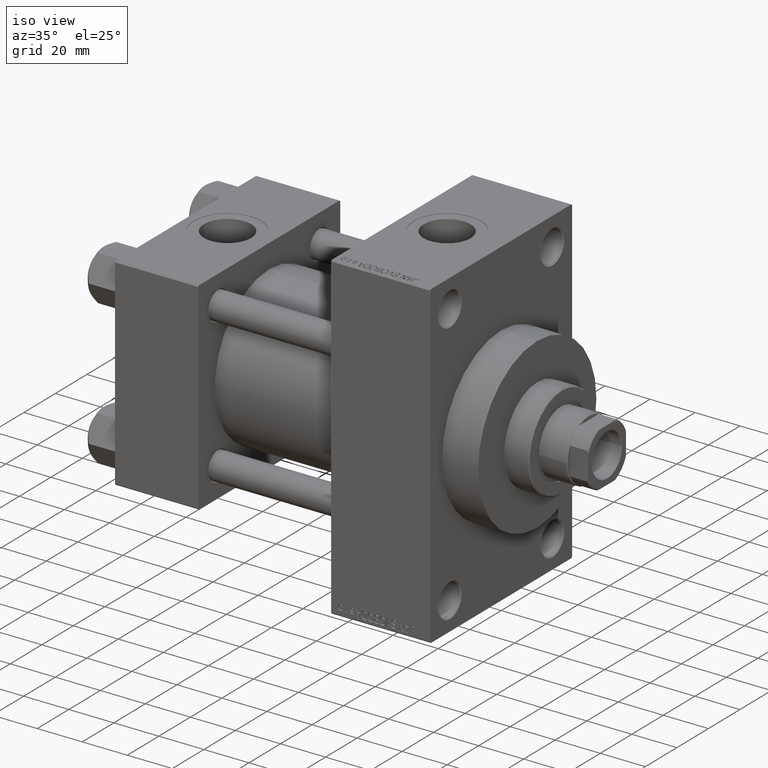
[diagram: clean part render]
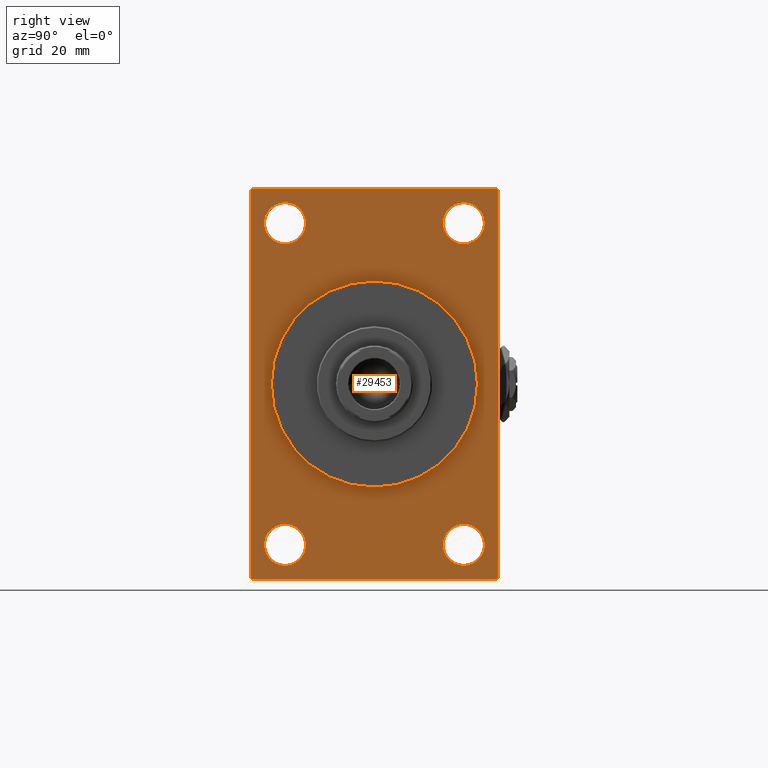
[diagram: tour spotlight — one face highlighted and labeled with its STEP entity id]
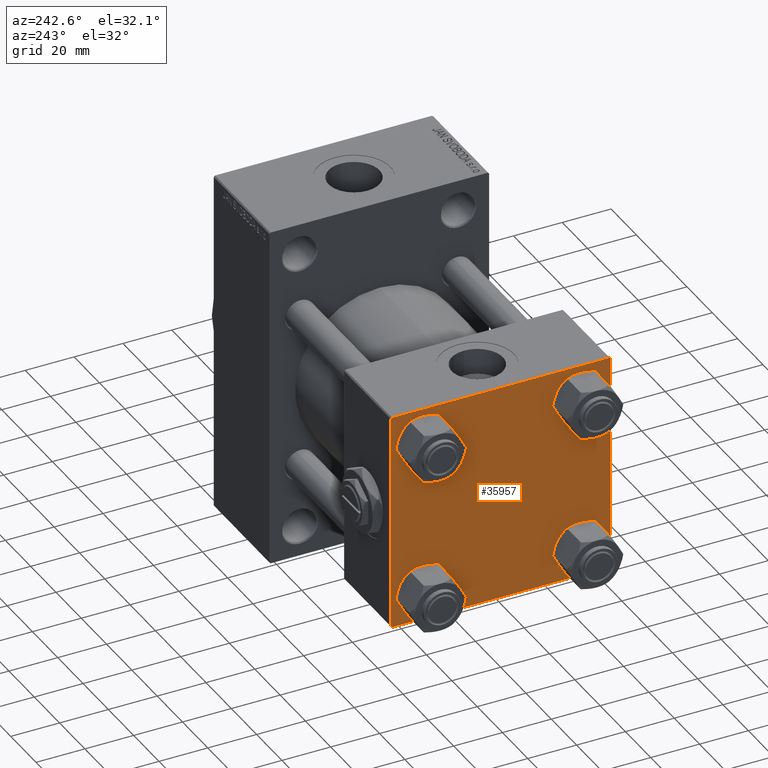
[diagram: tour spotlight — one face highlighted and labeled with its STEP entity id]
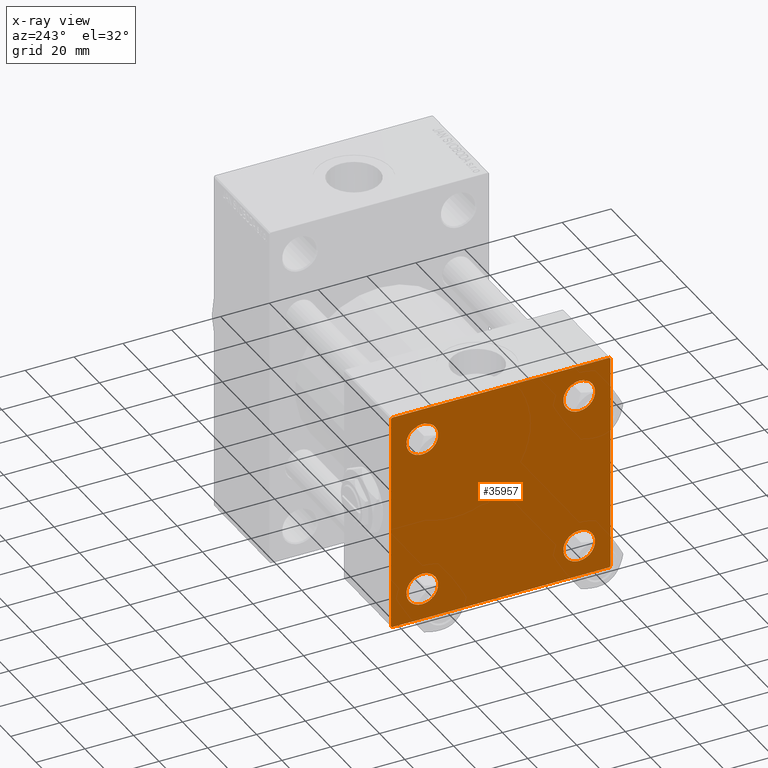
[diagram: x-ray of the same camera — body ghosted, this tour face saturated]
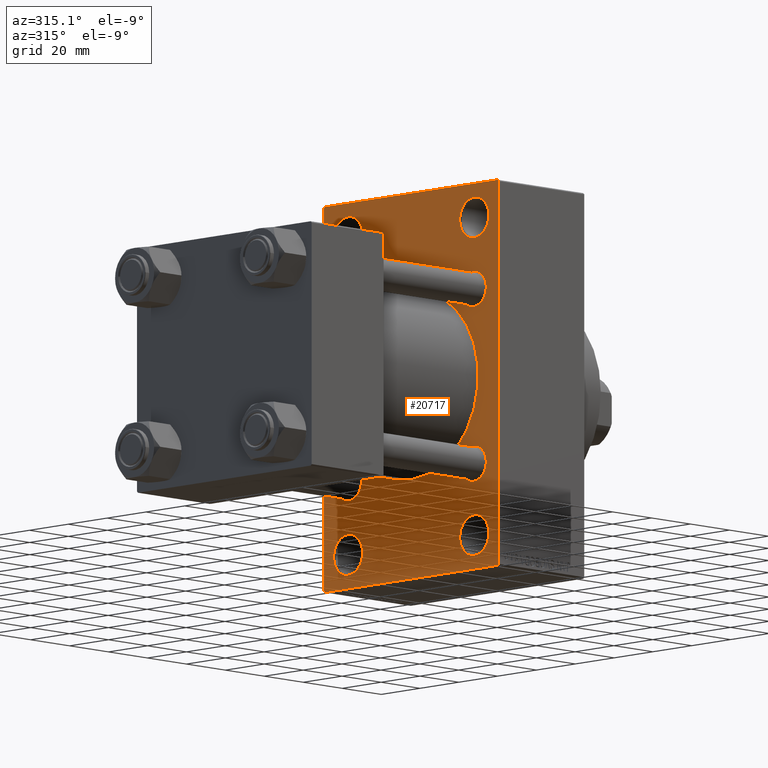
[diagram: tour spotlight — one face highlighted and labeled with its STEP entity id]
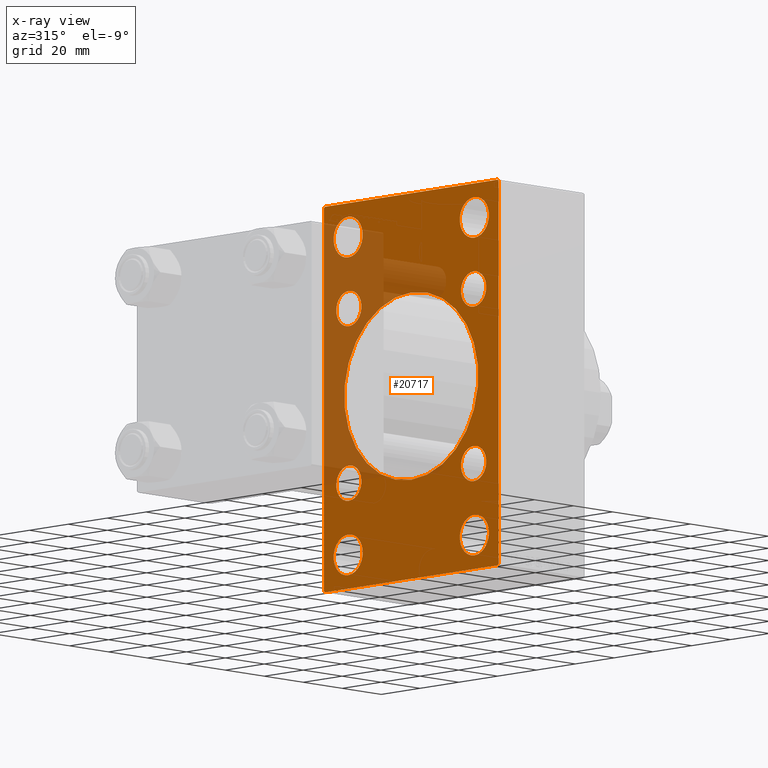
[diagram: x-ray of the same camera — body ghosted, this tour face saturated]
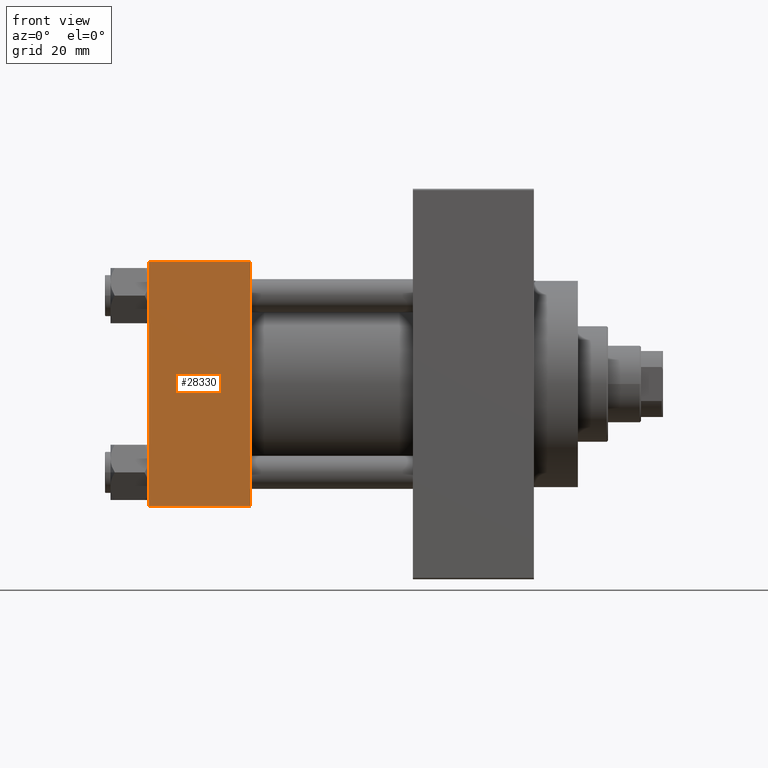
[diagram: tour spotlight — one face highlighted and labeled with its STEP entity id]
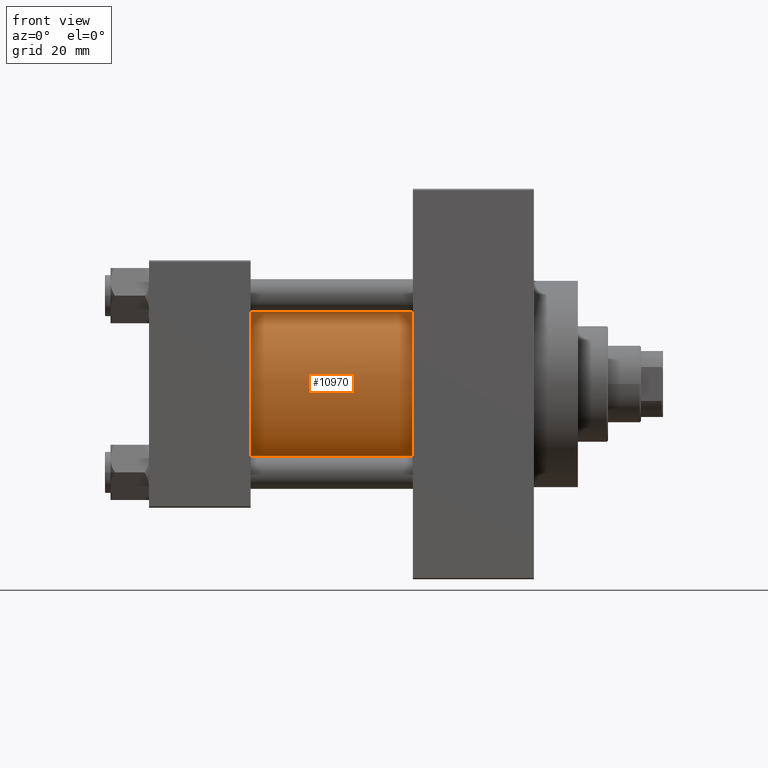
[diagram: tour spotlight — one face highlighted and labeled with its STEP entity id]
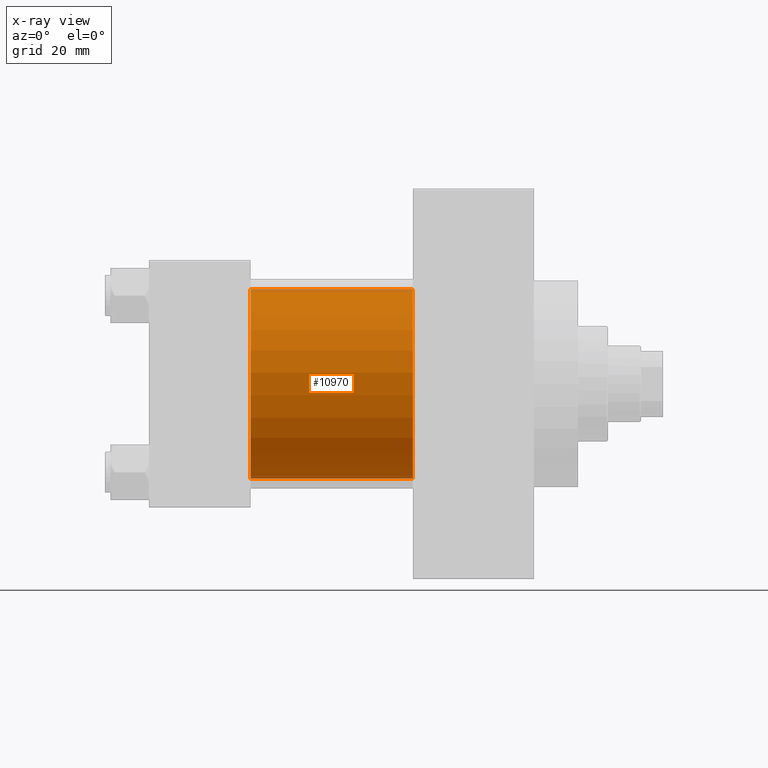
[diagram: x-ray of the same camera — body ghosted, this tour face saturated]
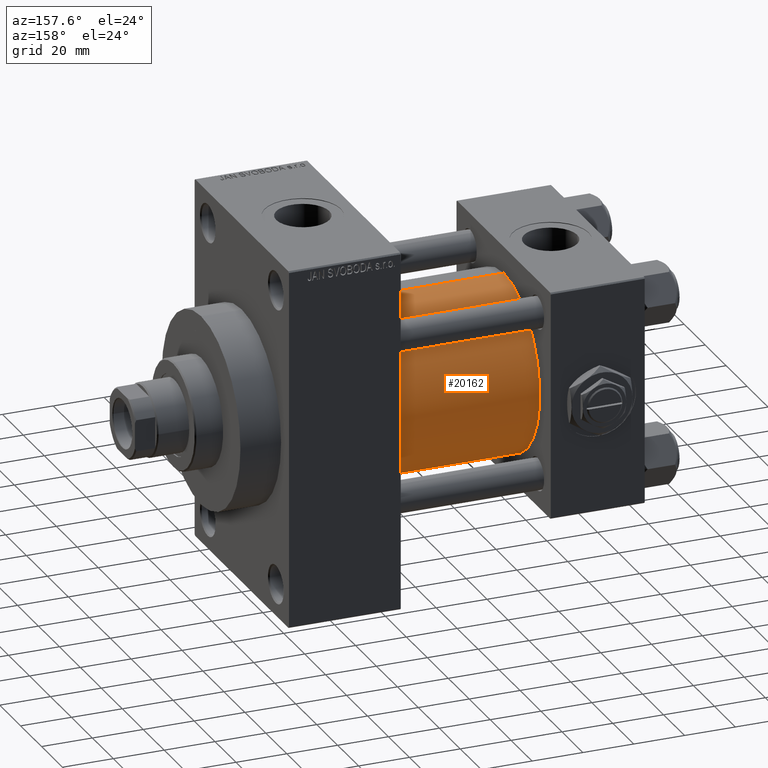
[diagram: tour spotlight — one face highlighted and labeled with its STEP entity id]
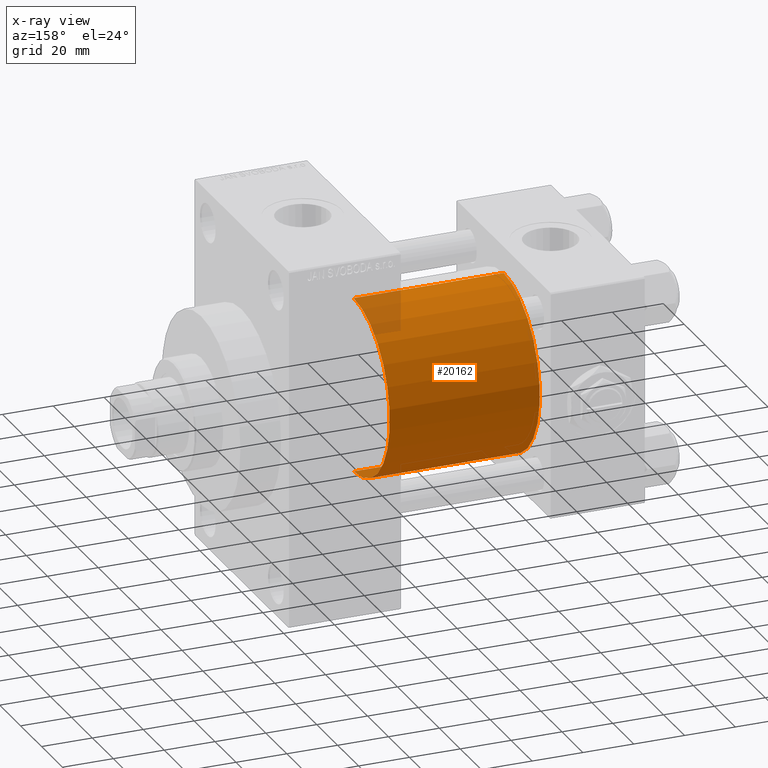
[diagram: x-ray of the same camera — body ghosted, this tour face saturated]
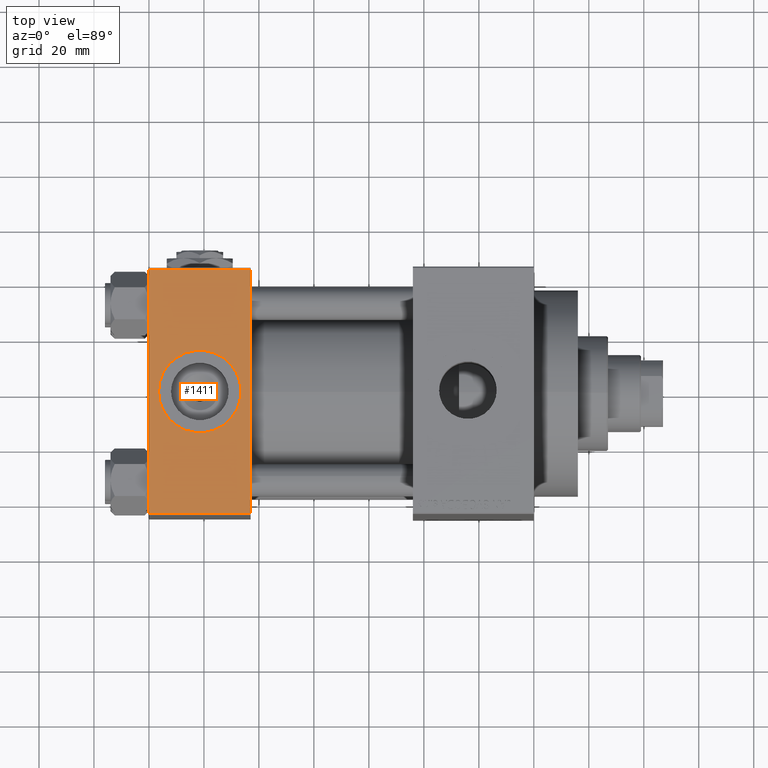
[diagram: tour spotlight — one face highlighted and labeled with its STEP entity id]
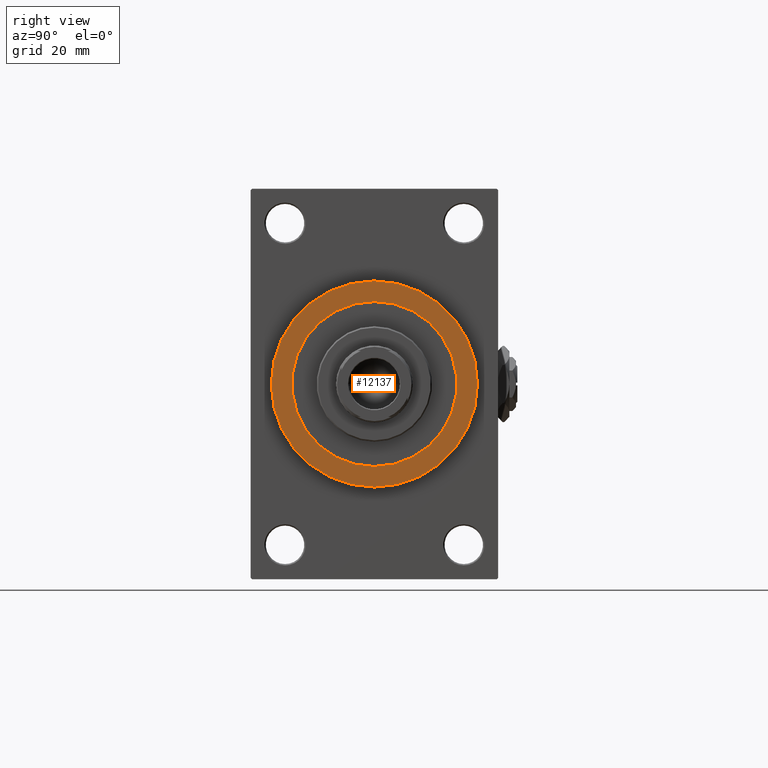
[diagram: tour spotlight — one face highlighted and labeled with its STEP entity id]
A machine part: a face-by-face anatomy tour. The part has 1156 B-rep faces; the first image is the clean iso view, then the 8 largest visible faces are spotlighted one at a time (largest first), each with its STEP entity span.

Face 1 — right view, entity #29453. In plain terms, the highlighted planar face has unit normal (-1, 0, 0).
Definition (entity closure, byte-faithful):
#418 = VERTEX_POINT ( 'NONE', #36881 ) ;
#1322 = ORIENTED_EDGE ( 'NONE', *, *, #11946, .T. ) ;
#1325 = DIRECTION ( 'NONE',  ( 1.000000000000000000, 0.000000000000000000, 0.000000000000000000 ) ) ;
#1510 = CIRCLE ( 'NONE', #6244, 7.500000000000041744 ) ;
#1623 = CARTESIAN_POINT ( 'NONE',  ( 140.0000000000000000, -32.50000000000000000, -50.99999999999995737 ) ) ;
#1818 = CARTESIAN_POINT ( 'NONE',  ( 140.0000000000000000, 0.000000000000000000, 0.000000000000000000 ) ) ;
#2374 = ORIENTED_EDGE ( 'NONE', *, *, #20777, .F. ) ;
#2485 = CARTESIAN_POINT ( 'NONE',  ( 140.0000000000000000, 45.00000000000001421, -70.50000000000001421 ) ) ;
#2545 = CARTESIAN_POINT ( 'NONE',  ( 140.0000000000000000, 32.50000000000000711, -58.50000000000000000 ) ) ;
#2600 = AXIS2_PLACEMENT_3D ( 'NONE', #18106, #10183, #36669 ) ;
#2702 = DIRECTION ( 'NONE',  ( 0.000000000000000000, 0.000000000000000000, 1.000000000000000000 ) ) ;
#2740 = CIRCLE ( 'NONE', #47800, 7.500000000000034639 ) ;
#2884 = LINE ( 'NONE', #40267, #34270 ) ;
#2965 = EDGE_CURVE ( 'NONE', #5165, #8388, #4437, .T. ) ;
#3392 = EDGE_CURVE ( 'NONE', #19212, #9418, #33605, .T. ) ;
#3466 = DIRECTION ( 'NONE',  ( -1.000000000000000000, 0.000000000000000000, -0.000000000000000000 ) ) ;
#3638 = DIRECTION ( 'NONE',  ( 0.000000000000000000, 0.000000000000000000, 1.000000000000000000 ) ) ;
#4293 = ORIENTED_EDGE ( 'NONE', *, *, #9314, .T. ) ;
#4437 = LINE ( 'NONE', #8633, #17014 ) ;
#4730 = EDGE_LOOP ( 'NONE', ( #20577, #4293 ) ) ;
#4792 = LINE ( 'NONE', #8751, #5597 ) ;
#4820 = EDGE_CURVE ( 'NONE', #7557, #8388, #32952, .T. ) ;
#5165 = VERTEX_POINT ( 'NONE', #6650 ) ;
#5475 = DIRECTION ( 'NONE',  ( -1.000000000000000000, 0.000000000000000000, -0.000000000000000000 ) ) ;
#5597 = VECTOR ( 'NONE', #30554, 1000.000000000000000 ) ;
#5652 = FACE_BOUND ( 'NONE', #13118, .T. ) ;
#5818 = DIRECTION ( 'NONE',  ( 0.000000000000000000, 0.000000000000000000, 1.000000000000000000 ) ) ;
#6244 = AXIS2_PLACEMENT_3D ( 'NONE', #11318, #10349, #3638 ) ;
#6650 = CARTESIAN_POINT ( 'NONE',  ( 140.0000000000000000, 45.00000000000002132, 70.50000000000000000 ) ) ;
#7121 = DIRECTION ( 'NONE',  ( -1.000000000000000000, 0.000000000000000000, -0.000000000000000000 ) ) ;
#7557 = VERTEX_POINT ( 'NONE', #7910 ) ;
#7592 = VERTEX_POINT ( 'NONE', #26218 ) ;
#7887 = EDGE_LOOP ( 'NONE', ( #27295, #25496, #43958, #46186, #17330, #11294, #12946, #44285 ) ) ;
#7910 = CARTESIAN_POINT ( 'NONE',  ( 140.0000000000000000, 44.50000000000004263, -70.99999999999998579 ) ) ;
#8388 = VERTEX_POINT ( 'NONE', #2485 ) ;
#8622 = AXIS2_PLACEMENT_3D ( 'NONE', #32142, #28196, #17291 ) ;
#8633 = CARTESIAN_POINT ( 'NONE',  ( 140.0000000000000000, 45.00000000000002132, 71.00000000000000000 ) ) ;
#8751 = CARTESIAN_POINT ( 'NONE',  ( 140.0000000000000000, 45.00000000000001421, -70.99999999999998579 ) ) ;
#9314 = EDGE_CURVE ( 'NONE', #23072, #45177, #36994, .T. ) ;
#9418 = VERTEX_POINT ( 'NONE', #11197 ) ;
#10164 = VECTOR ( 'NONE', #43768, 1000.000000000000000 ) ;
#10183 = DIRECTION ( 'NONE',  ( 1.000000000000000000, 0.000000000000000000, 0.000000000000000000 ) ) ;
#10349 = DIRECTION ( 'NONE',  ( -1.000000000000000000, 0.000000000000000000, -0.000000000000000000 ) ) ;
#10370 = DIRECTION ( 'NONE',  ( -1.000000000000000000, 0.000000000000000000, -0.000000000000000000 ) ) ;
#10385 = EDGE_LOOP ( 'NONE', ( #2374, #17979 ) ) ;
#11197 = CARTESIAN_POINT ( 'NONE',  ( 140.0000000000000000, -32.50000000000000000, 51.00000000000007105 ) ) ;
#11294 = ORIENTED_EDGE ( 'NONE', *, *, #41475, .T. ) ;
#11318 = CARTESIAN_POINT ( 'NONE',  ( 140.0000000000000000, -32.50000000000000000, -58.49999999999999289 ) ) ;
#11946 = EDGE_CURVE ( 'NONE', #9418, #19212, #26740, .T. ) ;
#11996 = CIRCLE ( 'NONE', #18308, 37.50000000000000711 ) ;
#12287 = AXIS2_PLACEMENT_3D ( 'NONE', #21420, #43928, #5818 ) ;
#12946 = ORIENTED_EDGE ( 'NONE', *, *, #12983, .T. ) ;
#12983 = EDGE_CURVE ( 'NONE', #15244, #44508, #44551, .T. ) ;
#13118 = EDGE_LOOP ( 'NONE', ( #1322, #29549 ) ) ;
#14353 = EDGE_LOOP ( 'NONE', ( #20426, #24750 ) ) ;
#14868 = DIRECTION ( 'NONE',  ( 0.000000000000000000, 0.000000000000000000, 1.000000000000000000 ) ) ;
#14905 = VERTEX_POINT ( 'NONE', #32650 ) ;
#15244 = VERTEX_POINT ( 'NONE', #22924 ) ;
#16473 = VECTOR ( 'NONE', #21799, 1000.000000000000000 ) ;
#16617 = AXIS2_PLACEMENT_3D ( 'NONE', #33669, #3466, #14868 ) ;
#16701 = EDGE_CURVE ( 'NONE', #23647, #25356, #38711, .T. ) ;
#17014 = VECTOR ( 'NONE', #19539, 1000.000000000000000 ) ;
#17261 = EDGE_CURVE ( 'NONE', #34979, #7592, #21352, .T. ) ;
#17291 = DIRECTION ( 'NONE',  ( -0.000000000000000000, 0.000000000000000000, 1.000000000000000000 ) ) ;
#17314 = CARTESIAN_POINT ( 'NONE',  ( 140.0000000000000000, 32.50000000000000711, -58.50000000000000000 ) ) ;
#17330 = ORIENTED_EDGE ( 'NONE', *, *, #2965, .F. ) ;
#17697 = VECTOR ( 'NONE', #46884, 1000.000000000000114 ) ;
#17781 = FACE_BOUND ( 'NONE', #4730, .T. ) ;
#17979 = ORIENTED_EDGE ( 'NONE', *, *, #38698, .F. ) ;
#18106 = CARTESIAN_POINT ( 'NONE',  ( 140.0000000000000000, 0.000000000000000000, 0.000000000000000000 ) ) ;
#18308 = AXIS2_PLACEMENT_3D ( 'NONE', #1818, #1325, #31287 ) ;
#18812 = CARTESIAN_POINT ( 'NONE',  ( 140.0000000000000000, 45.00000000000002132, 71.00000000000000000 ) ) ;
#19212 = VERTEX_POINT ( 'NONE', #28665 ) ;
#19539 = DIRECTION ( 'NONE',  ( 0.000000000000000000, -4.886545002751570165E-17, -1.000000000000000000 ) ) ;
#19683 = CARTESIAN_POINT ( 'NONE',  ( 140.0000000000000000, 32.50000000000000711, 65.99999999999994316 ) ) ;
#19716 = DIRECTION ( 'NONE',  ( -0.000000000000000000, -0.7071067811865426878, -0.7071067811865524577 ) ) ;
#20426 = ORIENTED_EDGE ( 'NONE', *, *, #16701, .T. ) ;
#20577 = ORIENTED_EDGE ( 'NONE', *, *, #46898, .T. ) ;
#20593 = DIRECTION ( 'NONE',  ( 0.000000000000000000, 0.000000000000000000, 1.000000000000000000 ) ) ;
#20773 = LINE ( 'NONE', #32151, #10164 ) ;
#20777 = EDGE_CURVE ( 'NONE', #34811, #28956, #11996, .T. ) ;
#21121 = DIRECTION ( 'NONE',  ( 0.000000000000000000, 0.000000000000000000, 1.000000000000000000 ) ) ;
#21183 = AXIS2_PLACEMENT_3D ( 'NONE', #2545, #43381, #21121 ) ;
#21235 = CARTESIAN_POINT ( 'NONE',  ( 140.0000000000000000, -32.50000000000000000, 58.50000000000000711 ) ) ;
#21352 = CIRCLE ( 'NONE', #16617, 7.500000000000041744 ) ;
#21420 = CARTESIAN_POINT ( 'NONE',  ( 140.0000000000000000, -32.50000000000000000, 58.50000000000000711 ) ) ;
#21579 = AXIS2_PLACEMENT_3D ( 'NONE', #35918, #5475, #20593 ) ;
#21799 = DIRECTION ( 'NONE',  ( 0.000000000000000000, -1.000000000000000000, -1.541976423090495387E-16 ) ) ;
#21941 = DIRECTION ( 'NONE',  ( 0.000000000000000000, 0.000000000000000000, -1.000000000000000000 ) ) ;
#22924 = CARTESIAN_POINT ( 'NONE',  ( 140.0000000000000000, 44.50000000000002132, 71.00000000000000000 ) ) ;
#23072 = VERTEX_POINT ( 'NONE', #33945 ) ;
#23184 = CIRCLE ( 'NONE', #2600, 37.50000000000000711 ) ;
#23288 = CARTESIAN_POINT ( 'NONE',  ( 140.0000000000000000, 4.592425496802575156E-15, -37.50000000000000711 ) ) ;
#23647 = VERTEX_POINT ( 'NONE', #43372 ) ;
#23912 = LINE ( 'NONE', #35276, #48294 ) ;
#24750 = ORIENTED_EDGE ( 'NONE', *, *, #42022, .T. ) ;
#25194 = DIRECTION ( 'NONE',  ( -1.000000000000000000, 0.000000000000000000, -0.000000000000000000 ) ) ;
#25356 = VERTEX_POINT ( 'NONE', #19683 ) ;
#25496 = ORIENTED_EDGE ( 'NONE', *, *, #29027, .T. ) ;
#26015 = DIRECTION ( 'NONE',  ( -0.000000000000000000, 0.7071067811865574537, 0.7071067811865376918 ) ) ;
#26218 = CARTESIAN_POINT ( 'NONE',  ( 140.0000000000000000, -32.50000000000000000, -66.00000000000001421 ) ) ;
#26740 = CIRCLE ( 'NONE', #36180, 7.499999999999936939 ) ;
#27177 = DIRECTION ( 'NONE',  ( 0.000000000000000000, 0.000000000000000000, 1.000000000000000000 ) ) ;
#27295 = ORIENTED_EDGE ( 'NONE', *, *, #40190, .T. ) ;
#27357 = ORIENTED_EDGE ( 'NONE', *, *, #29575, .T. ) ;
#27646 = AXIS2_PLACEMENT_3D ( 'NONE', #41032, #7121, #27177 ) ;
#28146 = VECTOR ( 'NONE', #26015, 999.9999999999998863 ) ;
#28196 = DIRECTION ( 'NONE',  ( -1.000000000000000000, 0.000000000000000000, -0.000000000000000000 ) ) ;
#28665 = CARTESIAN_POINT ( 'NONE',  ( 140.0000000000000000, -32.50000000000000000, 65.99999999999994316 ) ) ;
#28956 = VERTEX_POINT ( 'NONE', #23288 ) ;
#29027 = EDGE_CURVE ( 'NONE', #47834, #14905, #20773, .T. ) ;
#29453 = ADVANCED_FACE ( 'NONE', ( #5652, #47975, #17781, #36587, #36095, #47492 ), #43031, .F. ) ;
#29549 = ORIENTED_EDGE ( 'NONE', *, *, #3392, .T. ) ;
#29575 = EDGE_CURVE ( 'NONE', #7592, #34979, #1510, .T. ) ;
#30554 = DIRECTION ( 'NONE',  ( 0.000000000000000000, -1.000000000000000000, -1.541976423090495633E-16 ) ) ;
#31287 = DIRECTION ( 'NONE',  ( 0.000000000000000000, 0.000000000000000000, -1.000000000000000000 ) ) ;
#31780 = CARTESIAN_POINT ( 'NONE',  ( 140.0000000000000000, 44.50000000000002132, 71.00000000000000000 ) ) ;
#32142 = CARTESIAN_POINT ( 'NONE',  ( 140.0000000000000000, 0.000000000000000000, 0.000000000000000000 ) ) ;
#32151 = CARTESIAN_POINT ( 'NONE',  ( 140.0000000000000000, -44.49999999999997158, -71.00000000000000000 ) ) ;
#32650 = CARTESIAN_POINT ( 'NONE',  ( 140.0000000000000000, -44.49999999999994316, -71.00000000000000000 ) ) ;
#32952 = LINE ( 'NONE', #36666, #28146 ) ;
#33605 = CIRCLE ( 'NONE', #12287, 7.499999999999936939 ) ;
#33669 = CARTESIAN_POINT ( 'NONE',  ( 140.0000000000000000, -32.50000000000000000, -58.49999999999999289 ) ) ;
#33739 = EDGE_LOOP ( 'NONE', ( #27357, #39978 ) ) ;
#33945 = CARTESIAN_POINT ( 'NONE',  ( 140.0000000000000000, 32.50000000000000711, -50.99999999999996447 ) ) ;
#34065 = EDGE_CURVE ( 'NONE', #44508, #418, #23912, .T. ) ;
#34270 = VECTOR ( 'NONE', #21941, 1000.000000000000000 ) ;
#34405 = EDGE_CURVE ( 'NONE', #7557, #14905, #4792, .T. ) ;
#34811 = VERTEX_POINT ( 'NONE', #48686 ) ;
#34979 = VERTEX_POINT ( 'NONE', #1623 ) ;
#35276 = CARTESIAN_POINT ( 'NONE',  ( 140.0000000000000000, -44.99999999999997158, 70.49999999999998579 ) ) ;
#35800 = CIRCLE ( 'NONE', #21579, 7.499999999999936939 ) ;
#35918 = CARTESIAN_POINT ( 'NONE',  ( 140.0000000000000000, 32.50000000000000711, 58.50000000000000711 ) ) ;
#36095 = FACE_BOUND ( 'NONE', #10385, .T. ) ;
#36180 = AXIS2_PLACEMENT_3D ( 'NONE', #21235, #25194, #36326 ) ;
#36326 = DIRECTION ( 'NONE',  ( 0.000000000000000000, 0.000000000000000000, 1.000000000000000000 ) ) ;
#36587 = FACE_BOUND ( 'NONE', #14353, .T. ) ;
#36666 = CARTESIAN_POINT ( 'NONE',  ( 140.0000000000000000, 45.00000000000001421, -70.50000000000001421 ) ) ;
#36669 = DIRECTION ( 'NONE',  ( 0.000000000000000000, 0.000000000000000000, -1.000000000000000000 ) ) ;
#36881 = CARTESIAN_POINT ( 'NONE',  ( 140.0000000000000000, -44.99999999999997158, 70.49999999999998579 ) ) ;
#36994 = CIRCLE ( 'NONE', #21183, 7.500000000000034639 ) ;
#38698 = EDGE_CURVE ( 'NONE', #28956, #34811, #23184, .T. ) ;
#38711 = CIRCLE ( 'NONE', #27646, 7.499999999999936939 ) ;
#38973 = LINE ( 'NONE', #31780, #17697 ) ;
#39802 = CARTESIAN_POINT ( 'NONE',  ( 140.0000000000000000, 32.50000000000000711, -66.00000000000002842 ) ) ;
#39978 = ORIENTED_EDGE ( 'NONE', *, *, #17261, .T. ) ;
#40190 = EDGE_CURVE ( 'NONE', #418, #47834, #2884, .T. ) ;
#40267 = CARTESIAN_POINT ( 'NONE',  ( 140.0000000000000000, -44.99999999999997158, 70.99999999999998579 ) ) ;
#41032 = CARTESIAN_POINT ( 'NONE',  ( 140.0000000000000000, 32.50000000000000711, 58.50000000000000711 ) ) ;
#41475 = EDGE_CURVE ( 'NONE', #5165, #15244, #38973, .T. ) ;
#42022 = EDGE_CURVE ( 'NONE', #25356, #23647, #35800, .T. ) ;
#42348 = CARTESIAN_POINT ( 'NONE',  ( 140.0000000000000000, -44.99999999999997158, -70.50000000000000000 ) ) ;
#43031 = PLANE ( 'NONE',  #8622 ) ;
#43372 = CARTESIAN_POINT ( 'NONE',  ( 140.0000000000000000, 32.50000000000000711, 51.00000000000007105 ) ) ;
#43381 = DIRECTION ( 'NONE',  ( -1.000000000000000000, 0.000000000000000000, -0.000000000000000000 ) ) ;
#43768 = DIRECTION ( 'NONE',  ( 0.000000000000000000, 0.7071067811865573427, -0.7071067811865378028 ) ) ;
#43928 = DIRECTION ( 'NONE',  ( -1.000000000000000000, 0.000000000000000000, -0.000000000000000000 ) ) ;
#43958 = ORIENTED_EDGE ( 'NONE', *, *, #34405, .F. ) ;
#44285 = ORIENTED_EDGE ( 'NONE', *, *, #34065, .T. ) ;
#44508 = VERTEX_POINT ( 'NONE', #44953 ) ;
#44551 = LINE ( 'NONE', #18812, #16473 ) ;
#44953 = CARTESIAN_POINT ( 'NONE',  ( 140.0000000000000000, -44.49999999999995026, 70.99999999999998579 ) ) ;
#45177 = VERTEX_POINT ( 'NONE', #39802 ) ;
#46186 = ORIENTED_EDGE ( 'NONE', *, *, #4820, .T. ) ;
#46884 = DIRECTION ( 'NONE',  ( 0.000000000000000000, -0.7071067811865474617, 0.7071067811865474617 ) ) ;
#46898 = EDGE_CURVE ( 'NONE', #45177, #23072, #2740, .T. ) ;
#47492 = FACE_OUTER_BOUND ( 'NONE', #7887, .T. ) ;
#47800 = AXIS2_PLACEMENT_3D ( 'NONE', #17314, #10370, #2702 ) ;
#47834 = VERTEX_POINT ( 'NONE', #42348 ) ;
#47975 = FACE_BOUND ( 'NONE', #33739, .T. ) ;
#48294 = VECTOR ( 'NONE', #19716, 1000.000000000000000 ) ;
#48686 = CARTESIAN_POINT ( 'NONE',  ( 140.0000000000000000, 0.000000000000000000, 37.50000000000000711 ) ) ;

Face 2 — auxiliary view, entity #35957. An x-ray twin of the same camera follows (body ghosted, this face saturated) — the face is partly hidden behind the body. In plain terms, the highlighted planar face has unit normal (-1, 0, 0).
Definition (entity closure, byte-faithful):
#65 = CARTESIAN_POINT ( 'NONE',  ( 0.000000000000000000, 44.99999999999998579, 44.50000000000001421 ) ) ;
#2594 = VECTOR ( 'NONE', #34597, 1000.000000000000114 ) ;
#3405 = CARTESIAN_POINT ( 'NONE',  ( 0.000000000000000000, 44.99999999999998579, 45.00000000000001421 ) ) ;
#3624 = CARTESIAN_POINT ( 'NONE',  ( 0.000000000000000000, 32.14999999999999147, -32.15000000000000568 ) ) ;
#3778 = LINE ( 'NONE', #18887, #24453 ) ;
#3862 = CARTESIAN_POINT ( 'NONE',  ( 0.000000000000000000, 44.99999999999998579, -44.99999999999998579 ) ) ;
#5955 = LINE ( 'NONE', #31713, #16577 ) ;
#6155 = CARTESIAN_POINT ( 'NONE',  ( 0.000000000000000000, -32.14999999999997726, 25.64999999999999147 ) ) ;
#6319 = EDGE_CURVE ( 'NONE', #24029, #15539, #27913, .T. ) ;
#6851 = ORIENTED_EDGE ( 'NONE', *, *, #38261, .T. ) ;
#7474 = VERTEX_POINT ( 'NONE', #14710 ) ;
#7812 = FACE_BOUND ( 'NONE', #20022, .T. ) ;
#7946 = EDGE_CURVE ( 'NONE', #31602, #23377, #25875, .T. ) ;
#8100 = DIRECTION ( 'NONE',  ( 1.000000000000000000, -0.000000000000000000, 0.000000000000000000 ) ) ;
#8507 = AXIS2_PLACEMENT_3D ( 'NONE', #43674, #35768, #9775 ) ;
#8838 = VERTEX_POINT ( 'NONE', #39250 ) ;
#8886 = CIRCLE ( 'NONE', #34972, 6.499999999999977796 ) ;
#9321 = ORIENTED_EDGE ( 'NONE', *, *, #31094, .F. ) ;
#9496 = VERTEX_POINT ( 'NONE', #22831 ) ;
#9775 = DIRECTION ( 'NONE',  ( 0.000000000000000000, 0.000000000000000000, 1.000000000000000000 ) ) ;
#9916 = CARTESIAN_POINT ( 'NONE',  ( 0.000000000000000000, 32.14999999999999147, -25.65000000000002700 ) ) ;
#11110 = CARTESIAN_POINT ( 'NONE',  ( 0.000000000000000000, 32.14999999999999147, 32.15000000000000568 ) ) ;
#11485 = EDGE_LOOP ( 'NONE', ( #36441, #31025 ) ) ;
#11521 = FACE_BOUND ( 'NONE', #11485, .T. ) ;
#11777 = FACE_BOUND ( 'NONE', #15012, .T. ) ;
#11791 = CARTESIAN_POINT ( 'NONE',  ( 0.000000000000000000, -44.49999999999995737, 45.00000000000000000 ) ) ;
#12166 = CARTESIAN_POINT ( 'NONE',  ( 0.000000000000000000, -45.00000000000000000, -44.49999999999995737 ) ) ;
#12232 = VERTEX_POINT ( 'NONE', #32069 ) ;
#13701 = AXIS2_PLACEMENT_3D ( 'NONE', #18831, #19334, #47630 ) ;
#13920 = ORIENTED_EDGE ( 'NONE', *, *, #42577, .T. ) ;
#14078 = DIRECTION ( 'NONE',  ( 0.000000000000000000, -1.000000000000000000, -1.541976423090495387E-16 ) ) ;
#14347 = CARTESIAN_POINT ( 'NONE',  ( 0.000000000000000000, 32.14999999999999147, -38.64999999999998437 ) ) ;
#14504 = ORIENTED_EDGE ( 'NONE', *, *, #25721, .T. ) ;
#14615 = LINE ( 'NONE', #40117, #39796 ) ;
#14710 = CARTESIAN_POINT ( 'NONE',  ( 0.000000000000000000, -45.00000000000000711, 44.49999999999997158 ) ) ;
#15012 = EDGE_LOOP ( 'NONE', ( #6851, #46449 ) ) ;
#15370 = CARTESIAN_POINT ( 'NONE',  ( 0.000000000000000000, -32.14999999999997726, -38.64999999999999147 ) ) ;
#15539 = VERTEX_POINT ( 'NONE', #12166 ) ;
#15875 = CIRCLE ( 'NONE', #26130, 6.499999999999977796 ) ;
#16371 = EDGE_CURVE ( 'NONE', #7474, #47435, #5955, .T. ) ;
#16577 = VECTOR ( 'NONE', #36155, 1000.000000000000114 ) ;
#17051 = CIRCLE ( 'NONE', #20198, 6.499999999999977796 ) ;
#17063 = CARTESIAN_POINT ( 'NONE',  ( 0.000000000000000000, 44.99999999999998579, 45.00000000000001421 ) ) ;
#17279 = CARTESIAN_POINT ( 'NONE',  ( 0.000000000000000000, -44.49999999999995737, -45.00000000000000000 ) ) ;
#17762 = CIRCLE ( 'NONE', #30410, 6.499999999999977796 ) ;
#18050 = EDGE_LOOP ( 'NONE', ( #38770, #13920, #45169, #24313, #9321, #26140, #19930, #14504 ) ) ;
#18219 = AXIS2_PLACEMENT_3D ( 'NONE', #18721, #37777, #40758 ) ;
#18721 = CARTESIAN_POINT ( 'NONE',  ( 0.000000000000000000, -32.14999999999997726, 32.15000000000001279 ) ) ;
#18776 = DIRECTION ( 'NONE',  ( 1.000000000000000000, -0.000000000000000000, 0.000000000000000000 ) ) ;
#18831 = CARTESIAN_POINT ( 'NONE',  ( 0.000000000000000000, 32.14999999999999147, 32.15000000000000568 ) ) ;
#18887 = CARTESIAN_POINT ( 'NONE',  ( 0.000000000000000000, -45.00000000000000711, 45.00000000000000000 ) ) ;
#19334 = DIRECTION ( 'NONE',  ( 1.000000000000000000, -0.000000000000000000, 0.000000000000000000 ) ) ;
#19693 = PLANE ( 'NONE',  #30994 ) ;
#19930 = ORIENTED_EDGE ( 'NONE', *, *, #40763, .F. ) ;
#20022 = EDGE_LOOP ( 'NONE', ( #46652, #44897 ) ) ;
#20134 = CARTESIAN_POINT ( 'NONE',  ( 0.000000000000000000, 44.49999999999998579, -44.99999999999998579 ) ) ;
#20198 = AXIS2_PLACEMENT_3D ( 'NONE', #27804, #35950, #43861 ) ;
#20807 = VECTOR ( 'NONE', #33368, 1000.000000000000000 ) ;
#21674 = VERTEX_POINT ( 'NONE', #14347 ) ;
#22284 = DIRECTION ( 'NONE',  ( 0.000000000000000000, 0.7071067811865474617, -0.7071067811865474617 ) ) ;
#22831 = CARTESIAN_POINT ( 'NONE',  ( 0.000000000000000000, -32.14999999999997726, -25.65000000000003411 ) ) ;
#23223 = LINE ( 'NONE', #35073, #2594 ) ;
#23377 = VERTEX_POINT ( 'NONE', #38101 ) ;
#24029 = VERTEX_POINT ( 'NONE', #17279 ) ;
#24151 = CARTESIAN_POINT ( 'NONE',  ( 0.000000000000000000, 44.99999999999998579, -44.49999999999995737 ) ) ;
#24313 = ORIENTED_EDGE ( 'NONE', *, *, #6319, .T. ) ;
#24453 = VECTOR ( 'NONE', #34958, 1000.000000000000000 ) ;
#24755 = CARTESIAN_POINT ( 'NONE',  ( 0.000000000000000000, 44.49999999999998579, 45.00000000000001421 ) ) ;
#25550 = VERTEX_POINT ( 'NONE', #65 ) ;
#25721 = EDGE_CURVE ( 'NONE', #47890, #25550, #14615, .T. ) ;
#25875 = CIRCLE ( 'NONE', #8507, 6.500000000000019540 ) ;
#26130 = AXIS2_PLACEMENT_3D ( 'NONE', #11110, #29689, #41807 ) ;
#26140 = ORIENTED_EDGE ( 'NONE', *, *, #16371, .T. ) ;
#26624 = DIRECTION ( 'NONE',  ( -0.000000000000000000, 0.000000000000000000, 1.000000000000000000 ) ) ;
#27358 = FACE_BOUND ( 'NONE', #42176, .T. ) ;
#27804 = CARTESIAN_POINT ( 'NONE',  ( 0.000000000000000000, -32.14999999999997726, -32.15000000000001279 ) ) ;
#27913 = LINE ( 'NONE', #43482, #31355 ) ;
#28150 = DIRECTION ( 'NONE',  ( 0.000000000000000000, 0.000000000000000000, 1.000000000000000000 ) ) ;
#29689 = DIRECTION ( 'NONE',  ( 1.000000000000000000, -0.000000000000000000, 0.000000000000000000 ) ) ;
#30328 = FACE_OUTER_BOUND ( 'NONE', #18050, .T. ) ;
#30410 = AXIS2_PLACEMENT_3D ( 'NONE', #37582, #18776, #48238 ) ;
#30994 = AXIS2_PLACEMENT_3D ( 'NONE', #42443, #45425, #26624 ) ;
#31025 = ORIENTED_EDGE ( 'NONE', *, *, #42936, .T. ) ;
#31094 = EDGE_CURVE ( 'NONE', #7474, #15539, #3778, .T. ) ;
#31355 = VECTOR ( 'NONE', #35331, 1000.000000000000114 ) ;
#31468 = VERTEX_POINT ( 'NONE', #15370 ) ;
#31602 = VERTEX_POINT ( 'NONE', #6155 ) ;
#31713 = CARTESIAN_POINT ( 'NONE',  ( -0.000000000000000000, -44.75000000000029843, 44.74999999999967315 ) ) ;
#32069 = CARTESIAN_POINT ( 'NONE',  ( 0.000000000000000000, 32.14999999999999147, 38.64999999999999147 ) ) ;
#32671 = CIRCLE ( 'NONE', #13701, 6.499999999999977796 ) ;
#32678 = VECTOR ( 'NONE', #14078, 1000.000000000000000 ) ;
#33368 = DIRECTION ( 'NONE',  ( 0.000000000000000000, 0.000000000000000000, -1.000000000000000000 ) ) ;
#33492 = EDGE_CURVE ( 'NONE', #12232, #8838, #15875, .T. ) ;
#33941 = EDGE_CURVE ( 'NONE', #23377, #31602, #36419, .T. ) ;
#34059 = DIRECTION ( 'NONE',  ( 0.000000000000000000, -1.000000000000000000, -1.541976423090495633E-16 ) ) ;
#34086 = CIRCLE ( 'NONE', #45938, 6.499999999999977796 ) ;
#34597 = DIRECTION ( 'NONE',  ( -0.000000000000000000, -0.7071067811865474617, -0.7071067811865474617 ) ) ;
#34807 = EDGE_CURVE ( 'NONE', #21674, #44924, #34086, .T. ) ;
#34958 = DIRECTION ( 'NONE',  ( 0.000000000000000000, 7.709882115452476934E-17, -1.000000000000000000 ) ) ;
#34972 = AXIS2_PLACEMENT_3D ( 'NONE', #36541, #40008, #28150 ) ;
#35073 = CARTESIAN_POINT ( 'NONE',  ( 0.000000000000000000, 44.74999999999998579, -44.74999999999998579 ) ) ;
#35331 = DIRECTION ( 'NONE',  ( 0.000000000000000000, -0.7071067811865474617, 0.7071067811865474617 ) ) ;
#35768 = DIRECTION ( 'NONE',  ( 1.000000000000000000, -0.000000000000000000, 0.000000000000000000 ) ) ;
#35950 = DIRECTION ( 'NONE',  ( 1.000000000000000000, -0.000000000000000000, 0.000000000000000000 ) ) ;
#35957 = ADVANCED_FACE ( 'NONE', ( #27358, #11777, #7812, #11521, #30328 ), #19693, .T. ) ;
#36155 = DIRECTION ( 'NONE',  ( -0.000000000000000000, 0.7071067811865425767, 0.7071067811865524577 ) ) ;
#36419 = CIRCLE ( 'NONE', #18219, 6.500000000000019540 ) ;
#36441 = ORIENTED_EDGE ( 'NONE', *, *, #33492, .T. ) ;
#36541 = CARTESIAN_POINT ( 'NONE',  ( 0.000000000000000000, -32.14999999999997726, -32.15000000000001279 ) ) ;
#36605 = LINE ( 'NONE', #17063, #32678 ) ;
#37546 = DIRECTION ( 'NONE',  ( 0.000000000000000000, 0.000000000000000000, 1.000000000000000000 ) ) ;
#37582 = CARTESIAN_POINT ( 'NONE',  ( 0.000000000000000000, 32.14999999999999147, -32.15000000000000568 ) ) ;
#37777 = DIRECTION ( 'NONE',  ( 1.000000000000000000, -0.000000000000000000, 0.000000000000000000 ) ) ;
#38101 = CARTESIAN_POINT ( 'NONE',  ( 0.000000000000000000, -32.14999999999997726, 38.65000000000003411 ) ) ;
#38261 = EDGE_CURVE ( 'NONE', #9496, #31468, #8886, .T. ) ;
#38770 = ORIENTED_EDGE ( 'NONE', *, *, #42494, .T. ) ;
#39162 = VECTOR ( 'NONE', #34059, 1000.000000000000000 ) ;
#39250 = CARTESIAN_POINT ( 'NONE',  ( 0.000000000000000000, 32.14999999999999147, 25.65000000000002700 ) ) ;
#39796 = VECTOR ( 'NONE', #22284, 1000.000000000000114 ) ;
#40008 = DIRECTION ( 'NONE',  ( 1.000000000000000000, -0.000000000000000000, 0.000000000000000000 ) ) ;
#40117 = CARTESIAN_POINT ( 'NONE',  ( 0.000000000000000000, 44.74999999999999289, 44.74999999999999289 ) ) ;
#40413 = VERTEX_POINT ( 'NONE', #24151 ) ;
#40557 = LINE ( 'NONE', #3405, #20807 ) ;
#40590 = VERTEX_POINT ( 'NONE', #20134 ) ;
#40758 = DIRECTION ( 'NONE',  ( 0.000000000000000000, 0.000000000000000000, 1.000000000000000000 ) ) ;
#40763 = EDGE_CURVE ( 'NONE', #47890, #47435, #36605, .T. ) ;
#41807 = DIRECTION ( 'NONE',  ( 0.000000000000000000, 0.000000000000000000, 1.000000000000000000 ) ) ;
#42176 = EDGE_LOOP ( 'NONE', ( #48610, #43168 ) ) ;
#42443 = CARTESIAN_POINT ( 'NONE',  ( 0.000000000000000000, 0.000000000000000000, 0.000000000000000000 ) ) ;
#42494 = EDGE_CURVE ( 'NONE', #25550, #40413, #40557, .T. ) ;
#42577 = EDGE_CURVE ( 'NONE', #40413, #40590, #23223, .T. ) ;
#42936 = EDGE_CURVE ( 'NONE', #8838, #12232, #32671, .T. ) ;
#43168 = ORIENTED_EDGE ( 'NONE', *, *, #7946, .T. ) ;
#43482 = CARTESIAN_POINT ( 'NONE',  ( 0.000000000000000000, -44.74999999999998579, -44.74999999999998579 ) ) ;
#43674 = CARTESIAN_POINT ( 'NONE',  ( 0.000000000000000000, -32.14999999999997726, 32.15000000000001279 ) ) ;
#43861 = DIRECTION ( 'NONE',  ( 0.000000000000000000, 0.000000000000000000, 1.000000000000000000 ) ) ;
#44699 = LINE ( 'NONE', #3862, #39162 ) ;
#44897 = ORIENTED_EDGE ( 'NONE', *, *, #34807, .T. ) ;
#44924 = VERTEX_POINT ( 'NONE', #9916 ) ;
#45169 = ORIENTED_EDGE ( 'NONE', *, *, #48315, .T. ) ;
#45425 = DIRECTION ( 'NONE',  ( -1.000000000000000000, 0.000000000000000000, -0.000000000000000000 ) ) ;
#45938 = AXIS2_PLACEMENT_3D ( 'NONE', #3624, #8100, #37546 ) ;
#46449 = ORIENTED_EDGE ( 'NONE', *, *, #48757, .T. ) ;
#46652 = ORIENTED_EDGE ( 'NONE', *, *, #47082, .T. ) ;
#47082 = EDGE_CURVE ( 'NONE', #44924, #21674, #17762, .T. ) ;
#47435 = VERTEX_POINT ( 'NONE', #11791 ) ;
#47630 = DIRECTION ( 'NONE',  ( 0.000000000000000000, 0.000000000000000000, 1.000000000000000000 ) ) ;
#47890 = VERTEX_POINT ( 'NONE', #24755 ) ;
#48238 = DIRECTION ( 'NONE',  ( 0.000000000000000000, 0.000000000000000000, 1.000000000000000000 ) ) ;
#48315 = EDGE_CURVE ( 'NONE', #40590, #24029, #44699, .T. ) ;
#48610 = ORIENTED_EDGE ( 'NONE', *, *, #33941, .T. ) ;
#48757 = EDGE_CURVE ( 'NONE', #31468, #9496, #17051, .T. ) ;

Face 3 — auxiliary view, entity #20717. An x-ray twin of the same camera follows (body ghosted, this face saturated) — the face is partly hidden behind the body. In plain terms, the highlighted planar face has unit normal (-1, 0, 0).
Definition (entity closure, byte-faithful):
#386 = EDGE_CURVE ( 'NONE', #42296, #32388, #17728, .T. ) ;
#597 = ORIENTED_EDGE ( 'NONE', *, *, #28022, .T. ) ;
#710 = VERTEX_POINT ( 'NONE', #48936 ) ;
#892 = CIRCLE ( 'NONE', #38066, 7.500000000000007105 ) ;
#1093 = DIRECTION ( 'NONE',  ( 1.000000000000000000, -0.000000000000000000, 0.000000000000000000 ) ) ;
#1359 = ORIENTED_EDGE ( 'NONE', *, *, #11890, .T. ) ;
#1670 = CARTESIAN_POINT ( 'NONE',  ( 96.00000000000000000, 32.14999999999999147, 38.65000000000001279 ) ) ;
#1696 = VECTOR ( 'NONE', #12067, 1000.000000000000000 ) ;
#1759 = AXIS2_PLACEMENT_3D ( 'NONE', #31204, #7955, #23308 ) ;
#2329 = VERTEX_POINT ( 'NONE', #36684 ) ;
#2402 = CIRCLE ( 'NONE', #22982, 6.500000000000005329 ) ;
#2832 = CIRCLE ( 'NONE', #30518, 6.500000000000005329 ) ;
#2999 = CARTESIAN_POINT ( 'NONE',  ( 96.00000000000000000, 32.50000000000000711, 51.00000000000002842 ) ) ;
#3507 = VECTOR ( 'NONE', #45244, 1000.000000000000000 ) ;
#3662 = LINE ( 'NONE', #21995, #3507 ) ;
#3728 = ORIENTED_EDGE ( 'NONE', *, *, #33506, .T. ) ;
#4215 = EDGE_CURVE ( 'NONE', #47338, #46147, #2832, .T. ) ;
#4276 = DIRECTION ( 'NONE',  ( 1.000000000000000000, -0.000000000000000000, 0.000000000000000000 ) ) ;
#4385 = CARTESIAN_POINT ( 'NONE',  ( 96.00000000000000000, -44.99999999999997158, 70.99999999999998579 ) ) ;
#4477 = ORIENTED_EDGE ( 'NONE', *, *, #37543, .T. ) ;
#4483 = EDGE_LOOP ( 'NONE', ( #47228, #4477 ) ) ;
#4610 = AXIS2_PLACEMENT_3D ( 'NONE', #8765, #1093, #23634 ) ;
#5229 = DIRECTION ( 'NONE',  ( 0.000000000000000000, 0.000000000000000000, 1.000000000000000000 ) ) ;
#5527 = DIRECTION ( 'NONE',  ( -0.000000000000000000, 0.000000000000000000, 1.000000000000000000 ) ) ;
#5765 = ORIENTED_EDGE ( 'NONE', *, *, #33264, .T. ) ;
#6112 = CIRCLE ( 'NONE', #6936, 6.500000000000005329 ) ;
#6151 = CIRCLE ( 'NONE', #33818, 7.499999999999978684 ) ;
#6390 = ORIENTED_EDGE ( 'NONE', *, *, #20251, .F. ) ;
#6467 = DIRECTION ( 'NONE',  ( 0.000000000000000000, 0.7071067811865474617, -0.7071067811865474617 ) ) ;
#6658 = CIRCLE ( 'NONE', #20096, 7.500000000000007105 ) ;
#6901 = CARTESIAN_POINT ( 'NONE',  ( 96.00000000000000000, -32.50000000000000000, -65.99999999999997158 ) ) ;
#6936 = AXIS2_PLACEMENT_3D ( 'NONE', #11936, #15403, #18612 ) ;
#7350 = CARTESIAN_POINT ( 'NONE',  ( 96.00000000000000000, 32.14999999999999147, -32.15000000000000568 ) ) ;
#7955 = DIRECTION ( 'NONE',  ( 1.000000000000000000, -0.000000000000000000, 0.000000000000000000 ) ) ;
#8061 = EDGE_CURVE ( 'NONE', #14742, #8585, #6112, .T. ) ;
#8311 = DIRECTION ( 'NONE',  ( 0.000000000000000000, 0.000000000000000000, 1.000000000000000000 ) ) ;
#8454 = VERTEX_POINT ( 'NONE', #45025 ) ;
#8564 = VERTEX_POINT ( 'NONE', #38835 ) ;
#8585 = VERTEX_POINT ( 'NONE', #13325 ) ;
#8765 = CARTESIAN_POINT ( 'NONE',  ( 96.00000000000000000, -32.50000000000000000, -58.49999999999999289 ) ) ;
#8880 = EDGE_CURVE ( 'NONE', #17088, #37462, #6151, .T. ) ;
#8921 = ORIENTED_EDGE ( 'NONE', *, *, #386, .T. ) ;
#9150 = CARTESIAN_POINT ( 'NONE',  ( 96.00000000000000000, -2.602085213965210642E-15, 0.000000000000000000 ) ) ;
#9239 = FACE_BOUND ( 'NONE', #34927, .T. ) ;
#9404 = CARTESIAN_POINT ( 'NONE',  ( 96.00000000000000000, 45.00000000000002132, 71.00000000000000000 ) ) ;
#9451 = CIRCLE ( 'NONE', #44257, 34.50000000000000000 ) ;
#9663 = EDGE_LOOP ( 'NONE', ( #8921, #46641 ) ) ;
#9724 = EDGE_LOOP ( 'NONE', ( #28238, #25305 ) ) ;
#9746 = DIRECTION ( 'NONE',  ( 0.000000000000000000, 0.000000000000000000, 1.000000000000000000 ) ) ;
#9800 = CIRCLE ( 'NONE', #43785, 34.50000000000000000 ) ;
#9904 = EDGE_CURVE ( 'NONE', #32388, #42296, #14115, .T. ) ;
#10108 = CIRCLE ( 'NONE', #10894, 6.500000000000005329 ) ;
#10452 = CARTESIAN_POINT ( 'NONE',  ( 96.00000000000000000, 32.50000000000000711, -66.00000000000000000 ) ) ;
#10885 = CARTESIAN_POINT ( 'NONE',  ( 96.00000000000000000, -32.50000000000000000, -58.49999999999999289 ) ) ;
#10894 = AXIS2_PLACEMENT_3D ( 'NONE', #24709, #47477, #39790 ) ;
#10924 = LINE ( 'NONE', #41612, #35982 ) ;
#11016 = AXIS2_PLACEMENT_3D ( 'NONE', #23097, #4276, #5229 ) ;
#11129 = DIRECTION ( 'NONE',  ( 0.000000000000000000, 0.000000000000000000, 1.000000000000000000 ) ) ;
#11890 = EDGE_CURVE ( 'NONE', #37325, #16163, #10108, .T. ) ;
#11936 = CARTESIAN_POINT ( 'NONE',  ( 96.00000000000000000, -32.14999999999997726, 32.15000000000001279 ) ) ;
#11991 = DIRECTION ( 'NONE',  ( 0.000000000000000000, 0.000000000000000000, 1.000000000000000000 ) ) ;
#12067 = DIRECTION ( 'NONE',  ( 0.000000000000000000, 0.000000000000000000, -1.000000000000000000 ) ) ;
#12127 = ORIENTED_EDGE ( 'NONE', *, *, #24185, .T. ) ;
#12284 = DIRECTION ( 'NONE',  ( 1.000000000000000000, -0.000000000000000000, 0.000000000000000000 ) ) ;
#12378 = CARTESIAN_POINT ( 'NONE',  ( 96.00000000000000000, -32.50000000000000000, 65.99999999999998579 ) ) ;
#12485 = FACE_BOUND ( 'NONE', #4483, .T. ) ;
#12521 = CARTESIAN_POINT ( 'NONE',  ( 96.00000000000000000, 32.50000000000000711, 58.50000000000000711 ) ) ;
#12826 = CARTESIAN_POINT ( 'NONE',  ( 96.00000000000000000, 45.00000000000002132, 71.00000000000000000 ) ) ;
#12956 = AXIS2_PLACEMENT_3D ( 'NONE', #10885, #25508, #11129 ) ;
#13325 = CARTESIAN_POINT ( 'NONE',  ( 96.00000000000000000, -32.14999999999997726, 25.65000000000000213 ) ) ;
#13462 = CARTESIAN_POINT ( 'NONE',  ( 96.00000000000000000, -32.14999999999997726, -25.65000000000000568 ) ) ;
#14115 = CIRCLE ( 'NONE', #4610, 7.499999999999985789 ) ;
#14742 = VERTEX_POINT ( 'NONE', #15866 ) ;
#15269 = ORIENTED_EDGE ( 'NONE', *, *, #4215, .T. ) ;
#15403 = DIRECTION ( 'NONE',  ( 1.000000000000000000, -0.000000000000000000, 0.000000000000000000 ) ) ;
#15866 = CARTESIAN_POINT ( 'NONE',  ( 96.00000000000000000, -32.14999999999997726, 38.65000000000002700 ) ) ;
#15962 = FACE_BOUND ( 'NONE', #30101, .T. ) ;
#16013 = DIRECTION ( 'NONE',  ( 0.000000000000000000, 0.000000000000000000, 1.000000000000000000 ) ) ;
#16163 = VERTEX_POINT ( 'NONE', #13462 ) ;
#16180 = DIRECTION ( 'NONE',  ( 1.000000000000000000, -0.000000000000000000, 0.000000000000000000 ) ) ;
#16299 = EDGE_CURVE ( 'NONE', #33768, #40934, #22088, .T. ) ;
#16349 = VERTEX_POINT ( 'NONE', #27532 ) ;
#16366 = VERTEX_POINT ( 'NONE', #43577 ) ;
#16435 = FACE_BOUND ( 'NONE', #9663, .T. ) ;
#16679 = CARTESIAN_POINT ( 'NONE',  ( 96.00000000000000000, 0.000000000000000000, 0.000000000000000000 ) ) ;
#16738 = CARTESIAN_POINT ( 'NONE',  ( 96.00000000000000000, 32.50000000000000711, -58.50000000000000000 ) ) ;
#16886 = CARTESIAN_POINT ( 'NONE',  ( 96.00000000000000000, -32.14999999999997726, -38.65000000000001990 ) ) ;
#17088 = VERTEX_POINT ( 'NONE', #42388 ) ;
#17133 = ORIENTED_EDGE ( 'NONE', *, *, #32188, .T. ) ;
#17369 = LINE ( 'NONE', #25534, #37401 ) ;
#17429 = DIRECTION ( 'NONE',  ( 1.000000000000000000, -0.000000000000000000, 0.000000000000000000 ) ) ;
#17728 = CIRCLE ( 'NONE', #12956, 7.499999999999985789 ) ;
#18037 = EDGE_CURVE ( 'NONE', #8585, #14742, #2402, .T. ) ;
#18612 = DIRECTION ( 'NONE',  ( 0.000000000000000000, 0.000000000000000000, 1.000000000000000000 ) ) ;
#18874 = EDGE_LOOP ( 'NONE', ( #46507, #17133 ) ) ;
#19045 = ORIENTED_EDGE ( 'NONE', *, *, #43263, .T. ) ;
#19103 = ORIENTED_EDGE ( 'NONE', *, *, #8880, .T. ) ;
#19637 = ORIENTED_EDGE ( 'NONE', *, *, #42844, .T. ) ;
#19753 = DIRECTION ( 'NONE',  ( 0.000000000000000000, 0.000000000000000000, 1.000000000000000000 ) ) ;
#19772 = LINE ( 'NONE', #12826, #43756 ) ;
#20096 = AXIS2_PLACEMENT_3D ( 'NONE', #16738, #44185, #24662 ) ;
#20151 = FACE_OUTER_BOUND ( 'NONE', #37455, .T. ) ;
#20251 = EDGE_CURVE ( 'NONE', #8564, #710, #30873, .T. ) ;
#20717 = ADVANCED_FACE ( 'NONE', ( #15962, #16435, #28069, #31527, #46395, #12485, #9239, #39197, #35235, #20151 ), #38961, .T. ) ;
#20838 = AXIS2_PLACEMENT_3D ( 'NONE', #38803, #26948, #19753 ) ;
#21035 = ORIENTED_EDGE ( 'NONE', *, *, #40061, .F. ) ;
#21995 = CARTESIAN_POINT ( 'NONE',  ( 96.00000000000000000, -57.75000000000028422, 57.74999999999948841 ) ) ;
#22088 = CIRCLE ( 'NONE', #11016, 6.499999999999999112 ) ;
#22250 = CARTESIAN_POINT ( 'NONE',  ( 96.00000000000000000, 57.74999999999938893, -57.75000000000100187 ) ) ;
#22553 = DIRECTION ( 'NONE',  ( 0.000000000000000000, -0.7071067811865573427, 0.7071067811865378028 ) ) ;
#22982 = AXIS2_PLACEMENT_3D ( 'NONE', #28089, #38744, #8311 ) ;
#23097 = CARTESIAN_POINT ( 'NONE',  ( 96.00000000000000000, 32.14999999999999147, 32.15000000000000568 ) ) ;
#23250 = LINE ( 'NONE', #22250, #37195 ) ;
#23308 = DIRECTION ( 'NONE',  ( 0.000000000000000000, 0.000000000000000000, 1.000000000000000000 ) ) ;
#23442 = CARTESIAN_POINT ( 'NONE',  ( 96.00000000000000000, 32.50000000000000711, 58.50000000000000711 ) ) ;
#23444 = DIRECTION ( 'NONE',  ( 1.000000000000000000, -0.000000000000000000, 0.000000000000000000 ) ) ;
#23619 = EDGE_CURVE ( 'NONE', #29398, #41133, #27777, .T. ) ;
#23634 = DIRECTION ( 'NONE',  ( 0.000000000000000000, 0.000000000000000000, 1.000000000000000000 ) ) ;
#23684 = CARTESIAN_POINT ( 'NONE',  ( 96.00000000000000000, 32.50000000000000711, -58.50000000000000000 ) ) ;
#24185 = EDGE_CURVE ( 'NONE', #39163, #34603, #892, .T. ) ;
#24522 = DIRECTION ( 'NONE',  ( 0.000000000000000000, -4.886545002751570165E-17, -1.000000000000000000 ) ) ;
#24662 = DIRECTION ( 'NONE',  ( 0.000000000000000000, 0.000000000000000000, 1.000000000000000000 ) ) ;
#24709 = CARTESIAN_POINT ( 'NONE',  ( 96.00000000000000000, -32.14999999999997726, -32.15000000000001279 ) ) ;
#24799 = CIRCLE ( 'NONE', #28761, 7.499999999999978684 ) ;
#25305 = ORIENTED_EDGE ( 'NONE', *, *, #18037, .T. ) ;
#25508 = DIRECTION ( 'NONE',  ( 1.000000000000000000, -0.000000000000000000, 0.000000000000000000 ) ) ;
#25534 = CARTESIAN_POINT ( 'NONE',  ( 96.00000000000000000, 57.75000000000000000, 57.75000000000000000 ) ) ;
#25922 = DIRECTION ( 'NONE',  ( 1.000000000000000000, -0.000000000000000000, 0.000000000000000000 ) ) ;
#26510 = CARTESIAN_POINT ( 'NONE',  ( 96.00000000000000000, 45.00000000000001421, -70.50000000000001421 ) ) ;
#26934 = DIRECTION ( 'NONE',  ( 1.000000000000000000, 0.000000000000000000, 0.000000000000000000 ) ) ;
#26948 = DIRECTION ( 'NONE',  ( 1.000000000000000000, -0.000000000000000000, 0.000000000000000000 ) ) ;
#27532 = CARTESIAN_POINT ( 'NONE',  ( 96.00000000000000000, -44.49999999999994316, -71.00000000000000000 ) ) ;
#27777 = CIRCLE ( 'NONE', #36575, 7.499999999999978684 ) ;
#28022 = EDGE_CURVE ( 'NONE', #48177, #16349, #40663, .T. ) ;
#28069 = FACE_BOUND ( 'NONE', #40015, .T. ) ;
#28089 = CARTESIAN_POINT ( 'NONE',  ( 96.00000000000000000, -32.14999999999997726, 32.15000000000001279 ) ) ;
#28238 = ORIENTED_EDGE ( 'NONE', *, *, #8061, .T. ) ;
#28395 = CARTESIAN_POINT ( 'NONE',  ( 96.00000000000000000, 32.14999999999999147, -25.64999999999999858 ) ) ;
#28414 = ORIENTED_EDGE ( 'NONE', *, *, #38664, .T. ) ;
#28761 = AXIS2_PLACEMENT_3D ( 'NONE', #12521, #12284, #35514 ) ;
#29386 = ORIENTED_EDGE ( 'NONE', *, *, #42853, .T. ) ;
#29398 = VERTEX_POINT ( 'NONE', #35362 ) ;
#29746 = ORIENTED_EDGE ( 'NONE', *, *, #40376, .T. ) ;
#29771 = DIRECTION ( 'NONE',  ( 0.000000000000000000, -1.000000000000000000, -1.541976423090495633E-16 ) ) ;
#30101 = EDGE_LOOP ( 'NONE', ( #29386, #41679 ) ) ;
#30138 = DIRECTION ( 'NONE',  ( 0.000000000000000000, 0.000000000000000000, -1.000000000000000000 ) ) ;
#30142 = AXIS2_PLACEMENT_3D ( 'NONE', #16679, #39439, #5527 ) ;
#30263 = CARTESIAN_POINT ( 'NONE',  ( 96.00000000000000000, 45.00000000000001421, -70.99999999999998579 ) ) ;
#30426 = VERTEX_POINT ( 'NONE', #41095 ) ;
#30518 = AXIS2_PLACEMENT_3D ( 'NONE', #7350, #25922, #45214 ) ;
#30873 = LINE ( 'NONE', #4385, #1696 ) ;
#31204 = CARTESIAN_POINT ( 'NONE',  ( 96.00000000000000000, 32.14999999999999147, 32.15000000000000568 ) ) ;
#31527 = FACE_BOUND ( 'NONE', #40135, .T. ) ;
#31544 = DIRECTION ( 'NONE',  ( 1.000000000000000000, -0.000000000000000000, 0.000000000000000000 ) ) ;
#31674 = DIRECTION ( 'NONE',  ( 0.000000000000000000, 0.000000000000000000, -1.000000000000000000 ) ) ;
#31787 = CIRCLE ( 'NONE', #1759, 6.499999999999999112 ) ;
#31846 = AXIS2_PLACEMENT_3D ( 'NONE', #38980, #17429, #43649 ) ;
#32188 = EDGE_CURVE ( 'NONE', #38422, #30426, #9451, .T. ) ;
#32345 = EDGE_LOOP ( 'NONE', ( #19045, #1359 ) ) ;
#32388 = VERTEX_POINT ( 'NONE', #6901 ) ;
#33264 = EDGE_CURVE ( 'NONE', #16366, #46670, #43309, .T. ) ;
#33506 = EDGE_CURVE ( 'NONE', #46670, #48177, #23250, .T. ) ;
#33768 = VERTEX_POINT ( 'NONE', #1670 ) ;
#33818 = AXIS2_PLACEMENT_3D ( 'NONE', #23442, #38539, #16013 ) ;
#34603 = VERTEX_POINT ( 'NONE', #10452 ) ;
#34833 = CARTESIAN_POINT ( 'NONE',  ( 96.00000000000000000, -2.602085213965210642E-15, 0.000000000000000000 ) ) ;
#34927 = EDGE_LOOP ( 'NONE', ( #15269, #19637 ) ) ;
#35001 = CIRCLE ( 'NONE', #31846, 6.500000000000005329 ) ;
#35235 = FACE_BOUND ( 'NONE', #18874, .T. ) ;
#35362 = CARTESIAN_POINT ( 'NONE',  ( 96.00000000000000000, -32.50000000000000000, 51.00000000000002842 ) ) ;
#35514 = DIRECTION ( 'NONE',  ( 0.000000000000000000, 0.000000000000000000, 1.000000000000000000 ) ) ;
#35601 = VECTOR ( 'NONE', #24522, 1000.000000000000000 ) ;
#35982 = VECTOR ( 'NONE', #22553, 1000.000000000000000 ) ;
#35987 = CARTESIAN_POINT ( 'NONE',  ( 96.00000000000000000, -32.50000000000000000, 58.50000000000000711 ) ) ;
#36575 = AXIS2_PLACEMENT_3D ( 'NONE', #45898, #16180, #11991 ) ;
#36684 = CARTESIAN_POINT ( 'NONE',  ( 96.00000000000000000, 44.50000000000002132, 71.00000000000000000 ) ) ;
#37195 = VECTOR ( 'NONE', #42055, 999.9999999999998863 ) ;
#37325 = VERTEX_POINT ( 'NONE', #16886 ) ;
#37401 = VECTOR ( 'NONE', #6467, 1000.000000000000114 ) ;
#37455 = EDGE_LOOP ( 'NONE', ( #597, #43213, #6390, #41810, #21035, #28414, #5765, #3728 ) ) ;
#37462 = VERTEX_POINT ( 'NONE', #2999 ) ;
#37543 = EDGE_CURVE ( 'NONE', #40934, #33768, #31787, .T. ) ;
#38066 = AXIS2_PLACEMENT_3D ( 'NONE', #23684, #23444, #42246 ) ;
#38203 = CIRCLE ( 'NONE', #44500, 7.499999999999978684 ) ;
#38422 = VERTEX_POINT ( 'NONE', #42400 ) ;
#38539 = DIRECTION ( 'NONE',  ( 1.000000000000000000, -0.000000000000000000, 0.000000000000000000 ) ) ;
#38664 = EDGE_CURVE ( 'NONE', #2329, #16366, #17369, .T. ) ;
#38744 = DIRECTION ( 'NONE',  ( 1.000000000000000000, -0.000000000000000000, 0.000000000000000000 ) ) ;
#38803 = CARTESIAN_POINT ( 'NONE',  ( 96.00000000000000000, -32.14999999999997726, -32.15000000000001279 ) ) ;
#38835 = CARTESIAN_POINT ( 'NONE',  ( 96.00000000000000000, -44.99999999999997158, 70.49999999999998579 ) ) ;
#38961 = PLANE ( 'NONE',  #30142 ) ;
#38980 = CARTESIAN_POINT ( 'NONE',  ( 96.00000000000000000, 32.14999999999999147, -32.15000000000000568 ) ) ;
#39163 = VERTEX_POINT ( 'NONE', #45245 ) ;
#39197 = FACE_BOUND ( 'NONE', #32345, .T. ) ;
#39439 = DIRECTION ( 'NONE',  ( -1.000000000000000000, 0.000000000000000000, -0.000000000000000000 ) ) ;
#39790 = DIRECTION ( 'NONE',  ( 0.000000000000000000, 0.000000000000000000, 1.000000000000000000 ) ) ;
#40015 = EDGE_LOOP ( 'NONE', ( #12127, #44048 ) ) ;
#40061 = EDGE_CURVE ( 'NONE', #2329, #8454, #19772, .T. ) ;
#40135 = EDGE_LOOP ( 'NONE', ( #19103, #29746 ) ) ;
#40376 = EDGE_CURVE ( 'NONE', #37462, #17088, #24799, .T. ) ;
#40663 = LINE ( 'NONE', #30263, #41877 ) ;
#40934 = VERTEX_POINT ( 'NONE', #45291 ) ;
#41095 = CARTESIAN_POINT ( 'NONE',  ( 96.00000000000000000, -2.602085213965210642E-15, 34.50000000000000000 ) ) ;
#41133 = VERTEX_POINT ( 'NONE', #12378 ) ;
#41612 = CARTESIAN_POINT ( 'NONE',  ( 96.00000000000000000, -57.74999999999937472, -57.75000000000096634 ) ) ;
#41679 = ORIENTED_EDGE ( 'NONE', *, *, #23619, .T. ) ;
#41810 = ORIENTED_EDGE ( 'NONE', *, *, #47021, .T. ) ;
#41877 = VECTOR ( 'NONE', #29771, 1000.000000000000000 ) ;
#42055 = DIRECTION ( 'NONE',  ( -0.000000000000000000, -0.7071067811865574537, -0.7071067811865376918 ) ) ;
#42246 = DIRECTION ( 'NONE',  ( 0.000000000000000000, 0.000000000000000000, 1.000000000000000000 ) ) ;
#42296 = VERTEX_POINT ( 'NONE', #46766 ) ;
#42388 = CARTESIAN_POINT ( 'NONE',  ( 96.00000000000000000, 32.50000000000000711, 65.99999999999998579 ) ) ;
#42400 = CARTESIAN_POINT ( 'NONE',  ( 96.00000000000000000, 1.622946243093158675E-15, -34.50000000000000000 ) ) ;
#42757 = DIRECTION ( 'NONE',  ( 0.000000000000000000, -1.000000000000000000, -1.541976423090495387E-16 ) ) ;
#42844 = EDGE_CURVE ( 'NONE', #46147, #47338, #35001, .T. ) ;
#42853 = EDGE_CURVE ( 'NONE', #41133, #29398, #38203, .T. ) ;
#43213 = ORIENTED_EDGE ( 'NONE', *, *, #47673, .T. ) ;
#43263 = EDGE_CURVE ( 'NONE', #16163, #37325, #46108, .T. ) ;
#43309 = LINE ( 'NONE', #9404, #35601 ) ;
#43577 = CARTESIAN_POINT ( 'NONE',  ( 96.00000000000000000, 45.00000000000002132, 70.50000000000000000 ) ) ;
#43649 = DIRECTION ( 'NONE',  ( 0.000000000000000000, 0.000000000000000000, 1.000000000000000000 ) ) ;
#43756 = VECTOR ( 'NONE', #42757, 1000.000000000000000 ) ;
#43785 = AXIS2_PLACEMENT_3D ( 'NONE', #34833, #26934, #30138 ) ;
#44048 = ORIENTED_EDGE ( 'NONE', *, *, #45585, .T. ) ;
#44185 = DIRECTION ( 'NONE',  ( 1.000000000000000000, -0.000000000000000000, 0.000000000000000000 ) ) ;
#44257 = AXIS2_PLACEMENT_3D ( 'NONE', #9150, #46541, #31674 ) ;
#44500 = AXIS2_PLACEMENT_3D ( 'NONE', #35987, #31544, #9746 ) ;
#45025 = CARTESIAN_POINT ( 'NONE',  ( 96.00000000000000000, -44.49999999999995026, 70.99999999999998579 ) ) ;
#45214 = DIRECTION ( 'NONE',  ( 0.000000000000000000, 0.000000000000000000, 1.000000000000000000 ) ) ;
#45244 = DIRECTION ( 'NONE',  ( -0.000000000000000000, 0.7071067811865426878, 0.7071067811865524577 ) ) ;
#45245 = CARTESIAN_POINT ( 'NONE',  ( 96.00000000000000000, 32.50000000000000711, -50.99999999999999289 ) ) ;
#45291 = CARTESIAN_POINT ( 'NONE',  ( 96.00000000000000000, 32.14999999999999147, 25.65000000000000213 ) ) ;
#45585 = EDGE_CURVE ( 'NONE', #34603, #39163, #6658, .T. ) ;
#45898 = CARTESIAN_POINT ( 'NONE',  ( 96.00000000000000000, -32.50000000000000000, 58.50000000000000711 ) ) ;
#46108 = CIRCLE ( 'NONE', #20838, 6.500000000000005329 ) ;
#46147 = VERTEX_POINT ( 'NONE', #47981 ) ;
#46193 = EDGE_CURVE ( 'NONE', #30426, #38422, #9800, .T. ) ;
#46395 = FACE_BOUND ( 'NONE', #9724, .T. ) ;
#46507 = ORIENTED_EDGE ( 'NONE', *, *, #46193, .T. ) ;
#46541 = DIRECTION ( 'NONE',  ( 1.000000000000000000, 0.000000000000000000, 0.000000000000000000 ) ) ;
#46641 = ORIENTED_EDGE ( 'NONE', *, *, #9904, .T. ) ;
#46670 = VERTEX_POINT ( 'NONE', #26510 ) ;
#46766 = CARTESIAN_POINT ( 'NONE',  ( 96.00000000000000000, -32.50000000000000000, -51.00000000000000711 ) ) ;
#47021 = EDGE_CURVE ( 'NONE', #8564, #8454, #3662, .T. ) ;
#47228 = ORIENTED_EDGE ( 'NONE', *, *, #16299, .T. ) ;
#47338 = VERTEX_POINT ( 'NONE', #28395 ) ;
#47477 = DIRECTION ( 'NONE',  ( 1.000000000000000000, -0.000000000000000000, 0.000000000000000000 ) ) ;
#47673 = EDGE_CURVE ( 'NONE', #16349, #710, #10924, .T. ) ;
#47706 = CARTESIAN_POINT ( 'NONE',  ( 96.00000000000000000, 44.50000000000004263, -70.99999999999998579 ) ) ;
#47981 = CARTESIAN_POINT ( 'NONE',  ( 96.00000000000000000, 32.14999999999999147, -38.65000000000001279 ) ) ;
#48177 = VERTEX_POINT ( 'NONE', #47706 ) ;
#48936 = CARTESIAN_POINT ( 'NONE',  ( 96.00000000000000000, -44.99999999999997158, -70.50000000000000000 ) ) ;

Face 4 — front view, entity #28330. In plain terms, the highlighted planar face has unit normal (0, 1, 0).
Definition (entity closure, byte-faithful):
#288 = LINE ( 'NONE', #30232, #37980 ) ;
#3778 = LINE ( 'NONE', #18887, #24453 ) ;
#3800 = EDGE_LOOP ( 'NONE', ( #41815, #41000, #32908, #28484 ) ) ;
#6623 = CARTESIAN_POINT ( 'NONE',  ( 37.00000000000000000, -45.00000000000000711, 44.49999999999997158 ) ) ;
#7474 = VERTEX_POINT ( 'NONE', #14710 ) ;
#8684 = CARTESIAN_POINT ( 'NONE',  ( 37.00000000000000000, -45.00000000000000711, 44.49999999999997158 ) ) ;
#11073 = PLANE ( 'NONE',  #22940 ) ;
#12166 = CARTESIAN_POINT ( 'NONE',  ( 0.000000000000000000, -45.00000000000000000, -44.49999999999995737 ) ) ;
#14710 = CARTESIAN_POINT ( 'NONE',  ( 0.000000000000000000, -45.00000000000000711, 44.49999999999997158 ) ) ;
#15539 = VERTEX_POINT ( 'NONE', #12166 ) ;
#18887 = CARTESIAN_POINT ( 'NONE',  ( 0.000000000000000000, -45.00000000000000711, 45.00000000000000000 ) ) ;
#22940 = AXIS2_PLACEMENT_3D ( 'NONE', #45732, #30136, #23215 ) ;
#23215 = DIRECTION ( 'NONE',  ( 0.000000000000000000, -7.709882115452478166E-17, 1.000000000000000000 ) ) ;
#23306 = CARTESIAN_POINT ( 'NONE',  ( 37.00000000000000000, -45.00000000000000711, 45.00000000000000000 ) ) ;
#24453 = VECTOR ( 'NONE', #34958, 1000.000000000000000 ) ;
#25203 = LINE ( 'NONE', #6623, #48193 ) ;
#26071 = VECTOR ( 'NONE', #35146, 1000.000000000000000 ) ;
#27256 = EDGE_CURVE ( 'NONE', #33252, #7474, #25203, .T. ) ;
#28330 = ADVANCED_FACE ( 'NONE', ( #48704 ), #11073, .F. ) ;
#28428 = DIRECTION ( 'NONE',  ( -1.000000000000000000, 0.000000000000000000, 0.000000000000000000 ) ) ;
#28484 = ORIENTED_EDGE ( 'NONE', *, *, #27256, .T. ) ;
#30136 = DIRECTION ( 'NONE',  ( -0.000000000000000000, 1.000000000000000000, 7.709882115452478166E-17 ) ) ;
#30232 = CARTESIAN_POINT ( 'NONE',  ( 37.00000000000000000, -45.00000000000000000, -44.49999999999998579 ) ) ;
#31094 = EDGE_CURVE ( 'NONE', #7474, #15539, #3778, .T. ) ;
#31917 = LINE ( 'NONE', #23306, #26071 ) ;
#32106 = VERTEX_POINT ( 'NONE', #38636 ) ;
#32265 = EDGE_CURVE ( 'NONE', #33252, #32106, #31917, .T. ) ;
#32908 = ORIENTED_EDGE ( 'NONE', *, *, #32265, .F. ) ;
#33199 = EDGE_CURVE ( 'NONE', #15539, #32106, #288, .T. ) ;
#33252 = VERTEX_POINT ( 'NONE', #8684 ) ;
#34958 = DIRECTION ( 'NONE',  ( 0.000000000000000000, 7.709882115452476934E-17, -1.000000000000000000 ) ) ;
#35146 = DIRECTION ( 'NONE',  ( 0.000000000000000000, 7.709882115452476934E-17, -1.000000000000000000 ) ) ;
#37980 = VECTOR ( 'NONE', #45323, 1000.000000000000000 ) ;
#38636 = CARTESIAN_POINT ( 'NONE',  ( 37.00000000000000000, -45.00000000000000000, -44.49999999999995737 ) ) ;
#41000 = ORIENTED_EDGE ( 'NONE', *, *, #33199, .T. ) ;
#41815 = ORIENTED_EDGE ( 'NONE', *, *, #31094, .T. ) ;
#45323 = DIRECTION ( 'NONE',  ( 1.000000000000000000, 0.000000000000000000, 0.000000000000000000 ) ) ;
#45732 = CARTESIAN_POINT ( 'NONE',  ( 37.00000000000000000, -45.00000000000000711, 45.00000000000000000 ) ) ;
#48193 = VECTOR ( 'NONE', #28428, 1000.000000000000000 ) ;
#48704 = FACE_OUTER_BOUND ( 'NONE', #3800, .T. ) ;

Face 5 — front view, entity #10970. An x-ray twin of the same camera follows (body ghosted, this face saturated) — the face is partly hidden behind the body. In plain terms, the highlighted cylindrical surface (partial cylindrical patch) has radius 34.5 mm, axis along (-1, -0, -0).
Definition (entity closure, byte-faithful):
#935 = AXIS2_PLACEMENT_3D ( 'NONE', #46695, #28131, #16985 ) ;
#2409 = EDGE_CURVE ( 'NONE', #38422, #2772, #45079, .T. ) ;
#2772 = VERTEX_POINT ( 'NONE', #3198 ) ;
#3198 = CARTESIAN_POINT ( 'NONE',  ( 37.00000000000000000, 1.622946243093158675E-15, -34.50000000000000000 ) ) ;
#7000 = EDGE_CURVE ( 'NONE', #30426, #11298, #8627, .T. ) ;
#8207 = ORIENTED_EDGE ( 'NONE', *, *, #2409, .F. ) ;
#8627 = LINE ( 'NONE', #30919, #11647 ) ;
#9342 = DIRECTION ( 'NONE',  ( -1.000000000000000000, -0.000000000000000000, -0.000000000000000000 ) ) ;
#9800 = CIRCLE ( 'NONE', #43785, 34.50000000000000000 ) ;
#10022 = CARTESIAN_POINT ( 'NONE',  ( 37.00000000000000000, -2.602085213965210642E-15, 34.50000000000000000 ) ) ;
#10970 = ADVANCED_FACE ( 'NONE', ( #31864 ), #28170, .T. ) ;
#11298 = VERTEX_POINT ( 'NONE', #10022 ) ;
#11647 = VECTOR ( 'NONE', #46017, 1000.000000000000000 ) ;
#12461 = AXIS2_PLACEMENT_3D ( 'NONE', #43245, #9342, #34622 ) ;
#12769 = CIRCLE ( 'NONE', #935, 34.50000000000000000 ) ;
#15404 = VECTOR ( 'NONE', #19357, 1000.000000000000000 ) ;
#16985 = DIRECTION ( 'NONE',  ( 0.000000000000000000, 0.000000000000000000, 1.000000000000000000 ) ) ;
#17743 = ORIENTED_EDGE ( 'NONE', *, *, #46193, .F. ) ;
#19357 = DIRECTION ( 'NONE',  ( -1.000000000000000000, -0.000000000000000000, -0.000000000000000000 ) ) ;
#20369 = EDGE_CURVE ( 'NONE', #11298, #2772, #12769, .T. ) ;
#26934 = DIRECTION ( 'NONE',  ( 1.000000000000000000, 0.000000000000000000, 0.000000000000000000 ) ) ;
#28131 = DIRECTION ( 'NONE',  ( 1.000000000000000000, -0.000000000000000000, 0.000000000000000000 ) ) ;
#28170 = CYLINDRICAL_SURFACE ( 'NONE', #12461, 34.50000000000000000 ) ;
#30138 = DIRECTION ( 'NONE',  ( 0.000000000000000000, 0.000000000000000000, -1.000000000000000000 ) ) ;
#30426 = VERTEX_POINT ( 'NONE', #41095 ) ;
#30919 = CARTESIAN_POINT ( 'NONE',  ( 96.00000000000000000, -2.602085213965210642E-15, 34.50000000000000000 ) ) ;
#31864 = FACE_OUTER_BOUND ( 'NONE', #34400, .T. ) ;
#34308 = ORIENTED_EDGE ( 'NONE', *, *, #20369, .T. ) ;
#34400 = EDGE_LOOP ( 'NONE', ( #8207, #17743, #47336, #34308 ) ) ;
#34622 = DIRECTION ( 'NONE',  ( 0.000000000000000000, 0.000000000000000000, 1.000000000000000000 ) ) ;
#34833 = CARTESIAN_POINT ( 'NONE',  ( 96.00000000000000000, -2.602085213965210642E-15, 0.000000000000000000 ) ) ;
#38422 = VERTEX_POINT ( 'NONE', #42400 ) ;
#41095 = CARTESIAN_POINT ( 'NONE',  ( 96.00000000000000000, -2.602085213965210642E-15, 34.50000000000000000 ) ) ;
#42400 = CARTESIAN_POINT ( 'NONE',  ( 96.00000000000000000, 1.622946243093158675E-15, -34.50000000000000000 ) ) ;
#43245 = CARTESIAN_POINT ( 'NONE',  ( 96.00000000000000000, -2.602085213965210642E-15, 0.000000000000000000 ) ) ;
#43785 = AXIS2_PLACEMENT_3D ( 'NONE', #34833, #26934, #30138 ) ;
#45079 = LINE ( 'NONE', #48805, #15404 ) ;
#46017 = DIRECTION ( 'NONE',  ( -1.000000000000000000, -0.000000000000000000, -0.000000000000000000 ) ) ;
#46193 = EDGE_CURVE ( 'NONE', #30426, #38422, #9800, .T. ) ;
#46695 = CARTESIAN_POINT ( 'NONE',  ( 37.00000000000000000, -2.602085213965210642E-15, 0.000000000000000000 ) ) ;
#47336 = ORIENTED_EDGE ( 'NONE', *, *, #7000, .T. ) ;
#48805 = CARTESIAN_POINT ( 'NONE',  ( 96.00000000000000000, 1.622946243093158675E-15, -34.50000000000000000 ) ) ;

Face 6 — auxiliary view, entity #20162. An x-ray twin of the same camera follows (body ghosted, this face saturated) — the face is partly hidden behind the body. In plain terms, the highlighted cylindrical surface (partial cylindrical patch) has radius 34.5 mm, axis along (-1, -0, -0).
Definition (entity closure, byte-faithful):
#2409 = EDGE_CURVE ( 'NONE', #38422, #2772, #45079, .T. ) ;
#2421 = EDGE_CURVE ( 'NONE', #2772, #11298, #16977, .T. ) ;
#2772 = VERTEX_POINT ( 'NONE', #3198 ) ;
#3198 = CARTESIAN_POINT ( 'NONE',  ( 37.00000000000000000, 1.622946243093158675E-15, -34.50000000000000000 ) ) ;
#3496 = DIRECTION ( 'NONE',  ( 0.000000000000000000, 0.000000000000000000, 1.000000000000000000 ) ) ;
#7000 = EDGE_CURVE ( 'NONE', #30426, #11298, #8627, .T. ) ;
#8627 = LINE ( 'NONE', #30919, #11647 ) ;
#8645 = CARTESIAN_POINT ( 'NONE',  ( 96.00000000000000000, -2.602085213965210642E-15, 0.000000000000000000 ) ) ;
#9043 = ORIENTED_EDGE ( 'NONE', *, *, #7000, .F. ) ;
#9150 = CARTESIAN_POINT ( 'NONE',  ( 96.00000000000000000, -2.602085213965210642E-15, 0.000000000000000000 ) ) ;
#9451 = CIRCLE ( 'NONE', #44257, 34.50000000000000000 ) ;
#10022 = CARTESIAN_POINT ( 'NONE',  ( 37.00000000000000000, -2.602085213965210642E-15, 34.50000000000000000 ) ) ;
#10934 = DIRECTION ( 'NONE',  ( 1.000000000000000000, -0.000000000000000000, 0.000000000000000000 ) ) ;
#11298 = VERTEX_POINT ( 'NONE', #10022 ) ;
#11647 = VECTOR ( 'NONE', #46017, 1000.000000000000000 ) ;
#12469 = ORIENTED_EDGE ( 'NONE', *, *, #32188, .F. ) ;
#12944 = EDGE_LOOP ( 'NONE', ( #12469, #28775, #20171, #9043 ) ) ;
#15404 = VECTOR ( 'NONE', #19357, 1000.000000000000000 ) ;
#16977 = CIRCLE ( 'NONE', #24894, 34.50000000000000000 ) ;
#19357 = DIRECTION ( 'NONE',  ( -1.000000000000000000, -0.000000000000000000, -0.000000000000000000 ) ) ;
#20162 = ADVANCED_FACE ( 'NONE', ( #39082 ), #27464, .T. ) ;
#20171 = ORIENTED_EDGE ( 'NONE', *, *, #2421, .T. ) ;
#24894 = AXIS2_PLACEMENT_3D ( 'NONE', #34451, #10934, #3496 ) ;
#27464 = CYLINDRICAL_SURFACE ( 'NONE', #27780, 34.50000000000000000 ) ;
#27780 = AXIS2_PLACEMENT_3D ( 'NONE', #8645, #42545, #28430 ) ;
#28430 = DIRECTION ( 'NONE',  ( 0.000000000000000000, 0.000000000000000000, 1.000000000000000000 ) ) ;
#28775 = ORIENTED_EDGE ( 'NONE', *, *, #2409, .T. ) ;
#30426 = VERTEX_POINT ( 'NONE', #41095 ) ;
#30919 = CARTESIAN_POINT ( 'NONE',  ( 96.00000000000000000, -2.602085213965210642E-15, 34.50000000000000000 ) ) ;
#31674 = DIRECTION ( 'NONE',  ( 0.000000000000000000, 0.000000000000000000, -1.000000000000000000 ) ) ;
#32188 = EDGE_CURVE ( 'NONE', #38422, #30426, #9451, .T. ) ;
#34451 = CARTESIAN_POINT ( 'NONE',  ( 37.00000000000000000, -2.602085213965210642E-15, 0.000000000000000000 ) ) ;
#38422 = VERTEX_POINT ( 'NONE', #42400 ) ;
#39082 = FACE_OUTER_BOUND ( 'NONE', #12944, .T. ) ;
#41095 = CARTESIAN_POINT ( 'NONE',  ( 96.00000000000000000, -2.602085213965210642E-15, 34.50000000000000000 ) ) ;
#42400 = CARTESIAN_POINT ( 'NONE',  ( 96.00000000000000000, 1.622946243093158675E-15, -34.50000000000000000 ) ) ;
#42545 = DIRECTION ( 'NONE',  ( -1.000000000000000000, -0.000000000000000000, -0.000000000000000000 ) ) ;
#44257 = AXIS2_PLACEMENT_3D ( 'NONE', #9150, #46541, #31674 ) ;
#45079 = LINE ( 'NONE', #48805, #15404 ) ;
#46017 = DIRECTION ( 'NONE',  ( -1.000000000000000000, -0.000000000000000000, -0.000000000000000000 ) ) ;
#46541 = DIRECTION ( 'NONE',  ( 1.000000000000000000, 0.000000000000000000, 0.000000000000000000 ) ) ;
#48805 = CARTESIAN_POINT ( 'NONE',  ( 96.00000000000000000, 1.622946243093158675E-15, -34.50000000000000000 ) ) ;

Face 7 — top view, entity #1411. In plain terms, the highlighted planar face has unit normal (0, 0, -1).
Definition (entity closure, byte-faithful):
#1411 = ADVANCED_FACE ( 'NONE', ( #15662, #12432 ), #8937, .F. ) ;
#3527 = LINE ( 'NONE', #28814, #13524 ) ;
#6016 = EDGE_CURVE ( 'NONE', #8499, #46841, #35306, .T. ) ;
#6661 = DIRECTION ( 'NONE',  ( 1.000000000000000000, 0.000000000000000000, 0.000000000000000000 ) ) ;
#7284 = DIRECTION ( 'NONE',  ( 1.000000000000000000, 0.000000000000000000, 0.000000000000000000 ) ) ;
#7785 = CARTESIAN_POINT ( 'NONE',  ( 18.50000000000000000, -8.673617379884038628E-15, 45.00000000000000711 ) ) ;
#8499 = VERTEX_POINT ( 'NONE', #8873 ) ;
#8734 = ORIENTED_EDGE ( 'NONE', *, *, #40763, .T. ) ;
#8873 = CARTESIAN_POINT ( 'NONE',  ( 3.499999999999997780, -6.836647181163008250E-15, 45.00000000000000711 ) ) ;
#8937 = PLANE ( 'NONE',  #11436 ) ;
#10644 = VERTEX_POINT ( 'NONE', #16837 ) ;
#11369 = DIRECTION ( 'NONE',  ( 1.000000000000000000, 0.000000000000000000, 0.000000000000000000 ) ) ;
#11436 = AXIS2_PLACEMENT_3D ( 'NONE', #19857, #23578, #34707 ) ;
#11791 = CARTESIAN_POINT ( 'NONE',  ( 0.000000000000000000, -44.49999999999995737, 45.00000000000000000 ) ) ;
#12397 = EDGE_CURVE ( 'NONE', #46841, #8499, #41739, .T. ) ;
#12432 = FACE_OUTER_BOUND ( 'NONE', #37058, .T. ) ;
#13524 = VECTOR ( 'NONE', #17668, 1000.000000000000000 ) ;
#14078 = DIRECTION ( 'NONE',  ( 0.000000000000000000, -1.000000000000000000, -1.541976423090495387E-16 ) ) ;
#14904 = ORIENTED_EDGE ( 'NONE', *, *, #6016, .F. ) ;
#15645 = AXIS2_PLACEMENT_3D ( 'NONE', #7785, #19175, #7284 ) ;
#15662 = FACE_BOUND ( 'NONE', #41997, .T. ) ;
#16837 = CARTESIAN_POINT ( 'NONE',  ( 37.00000000000000000, -44.49999999999995737, 45.00000000000000000 ) ) ;
#17063 = CARTESIAN_POINT ( 'NONE',  ( 0.000000000000000000, 44.99999999999998579, 45.00000000000001421 ) ) ;
#17668 = DIRECTION ( 'NONE',  ( 0.000000000000000000, -1.000000000000000000, -1.541976423090495387E-16 ) ) ;
#17807 = CARTESIAN_POINT ( 'NONE',  ( 33.50000000000000000, -8.673617379884038628E-15, 45.00000000000000711 ) ) ;
#19007 = EDGE_CURVE ( 'NONE', #47435, #10644, #41315, .T. ) ;
#19175 = DIRECTION ( 'NONE',  ( 0.000000000000000000, 0.000000000000000000, 1.000000000000000000 ) ) ;
#19499 = AXIS2_PLACEMENT_3D ( 'NONE', #40575, #33625, #6661 ) ;
#19857 = CARTESIAN_POINT ( 'NONE',  ( 37.00000000000000000, 44.99999999999998579, 45.00000000000001421 ) ) ;
#21270 = VECTOR ( 'NONE', #29342, 1000.000000000000000 ) ;
#22511 = CARTESIAN_POINT ( 'NONE',  ( 37.00000000000000000, -44.49999999999998579, 45.00000000000000000 ) ) ;
#23030 = VECTOR ( 'NONE', #11369, 1000.000000000000000 ) ;
#23578 = DIRECTION ( 'NONE',  ( 0.000000000000000000, 1.541976423090495633E-16, -1.000000000000000000 ) ) ;
#24755 = CARTESIAN_POINT ( 'NONE',  ( 0.000000000000000000, 44.49999999999998579, 45.00000000000001421 ) ) ;
#25870 = LINE ( 'NONE', #48397, #21270 ) ;
#28814 = CARTESIAN_POINT ( 'NONE',  ( 37.00000000000000000, 44.99999999999998579, 45.00000000000001421 ) ) ;
#29342 = DIRECTION ( 'NONE',  ( -1.000000000000000000, 0.000000000000000000, 0.000000000000000000 ) ) ;
#29822 = EDGE_CURVE ( 'NONE', #35731, #47890, #25870, .T. ) ;
#31045 = ORIENTED_EDGE ( 'NONE', *, *, #29822, .T. ) ;
#31069 = ORIENTED_EDGE ( 'NONE', *, *, #35380, .F. ) ;
#32678 = VECTOR ( 'NONE', #14078, 1000.000000000000000 ) ;
#33625 = DIRECTION ( 'NONE',  ( 0.000000000000000000, 0.000000000000000000, 1.000000000000000000 ) ) ;
#34707 = DIRECTION ( 'NONE',  ( 0.000000000000000000, 1.000000000000000000, 1.541976423090495633E-16 ) ) ;
#34863 = ORIENTED_EDGE ( 'NONE', *, *, #12397, .F. ) ;
#35306 = CIRCLE ( 'NONE', #19499, 15.00000000000000355 ) ;
#35380 = EDGE_CURVE ( 'NONE', #35731, #10644, #3527, .T. ) ;
#35731 = VERTEX_POINT ( 'NONE', #45297 ) ;
#36605 = LINE ( 'NONE', #17063, #32678 ) ;
#37058 = EDGE_LOOP ( 'NONE', ( #8734, #46680, #31069, #31045 ) ) ;
#40575 = CARTESIAN_POINT ( 'NONE',  ( 18.50000000000000000, -8.673617379884038628E-15, 45.00000000000000711 ) ) ;
#40763 = EDGE_CURVE ( 'NONE', #47890, #47435, #36605, .T. ) ;
#41315 = LINE ( 'NONE', #22511, #23030 ) ;
#41739 = CIRCLE ( 'NONE', #15645, 15.00000000000000355 ) ;
#41997 = EDGE_LOOP ( 'NONE', ( #34863, #14904 ) ) ;
#45297 = CARTESIAN_POINT ( 'NONE',  ( 37.00000000000000000, 44.49999999999998579, 45.00000000000001421 ) ) ;
#46680 = ORIENTED_EDGE ( 'NONE', *, *, #19007, .T. ) ;
#46841 = VERTEX_POINT ( 'NONE', #17807 ) ;
#47435 = VERTEX_POINT ( 'NONE', #11791 ) ;
#47890 = VERTEX_POINT ( 'NONE', #24755 ) ;
#48397 = CARTESIAN_POINT ( 'NONE',  ( 0.000000000000000000, 44.49999999999998579, 45.00000000000001421 ) ) ;

Face 8 — right view, entity #12137. In plain terms, the highlighted planar face has unit normal (1, 0, 0).
Definition (entity closure, byte-faithful):
#322 = CARTESIAN_POINT ( 'NONE',  ( 156.0000000000000284, 0.000000000000000000, 0.000000000000000000 ) ) ;
#566 = DIRECTION ( 'NONE',  ( 0.000000000000000000, 0.000000000000000000, -1.000000000000000000 ) ) ;
#1372 = CARTESIAN_POINT ( 'NONE',  ( 156.0000000000000284, 0.000000000000000000, 0.000000000000000000 ) ) ;
#1484 = CARTESIAN_POINT ( 'NONE',  ( 156.0000000000000284, 0.000000000000000000, -30.00000000000000000 ) ) ;
#1621 = DIRECTION ( 'NONE',  ( 1.000000000000000000, 0.000000000000000000, 0.000000000000000000 ) ) ;
#4660 = CIRCLE ( 'NONE', #41837, 37.50000000000000711 ) ;
#6896 = CARTESIAN_POINT ( 'NONE',  ( 156.0000000000000284, 0.000000000000000000, 0.000000000000000000 ) ) ;
#8338 = FACE_BOUND ( 'NONE', #17489, .T. ) ;
#11094 = VERTEX_POINT ( 'NONE', #22187 ) ;
#12137 = ADVANCED_FACE ( 'NONE', ( #8338, #42712 ), #15768, .T. ) ;
#12138 = DIRECTION ( 'NONE',  ( 1.000000000000000000, 0.000000000000000000, 0.000000000000000000 ) ) ;
#14829 = EDGE_CURVE ( 'NONE', #25835, #15654, #41023, .T. ) ;
#15654 = VERTEX_POINT ( 'NONE', #1484 ) ;
#15768 = PLANE ( 'NONE',  #43283 ) ;
#17489 = EDGE_LOOP ( 'NONE', ( #27274, #33105 ) ) ;
#20510 = AXIS2_PLACEMENT_3D ( 'NONE', #6896, #25478, #28940 ) ;
#22187 = CARTESIAN_POINT ( 'NONE',  ( 156.0000000000000284, 4.592425496802575156E-15, -37.50000000000000711 ) ) ;
#22889 = CARTESIAN_POINT ( 'NONE',  ( 156.0000000000000284, 0.000000000000000000, 37.50000000000000711 ) ) ;
#23299 = DIRECTION ( 'NONE',  ( 0.000000000000000000, 0.000000000000000000, -1.000000000000000000 ) ) ;
#23454 = ORIENTED_EDGE ( 'NONE', *, *, #30199, .T. ) ;
#23467 = ORIENTED_EDGE ( 'NONE', *, *, #41196, .T. ) ;
#24403 = DIRECTION ( 'NONE',  ( 0.000000000000000000, 0.000000000000000000, -1.000000000000000000 ) ) ;
#24567 = VERTEX_POINT ( 'NONE', #22889 ) ;
#25060 = EDGE_LOOP ( 'NONE', ( #23467, #23454 ) ) ;
#25478 = DIRECTION ( 'NONE',  ( 1.000000000000000000, 0.000000000000000000, 0.000000000000000000 ) ) ;
#25835 = VERTEX_POINT ( 'NONE', #46047 ) ;
#26346 = CIRCLE ( 'NONE', #35843, 30.00000000000000000 ) ;
#27236 = DIRECTION ( 'NONE',  ( 0.000000000000000000, 0.000000000000000000, -1.000000000000000000 ) ) ;
#27274 = ORIENTED_EDGE ( 'NONE', *, *, #42948, .F. ) ;
#27976 = AXIS2_PLACEMENT_3D ( 'NONE', #30450, #12138, #27236 ) ;
#28940 = DIRECTION ( 'NONE',  ( 0.000000000000000000, 0.000000000000000000, -1.000000000000000000 ) ) ;
#30199 = EDGE_CURVE ( 'NONE', #11094, #24567, #4660, .T. ) ;
#30450 = CARTESIAN_POINT ( 'NONE',  ( 156.0000000000000284, 0.000000000000000000, 0.000000000000000000 ) ) ;
#31668 = DIRECTION ( 'NONE',  ( 1.000000000000000000, 0.000000000000000000, 0.000000000000000000 ) ) ;
#33105 = ORIENTED_EDGE ( 'NONE', *, *, #14829, .F. ) ;
#34476 = DIRECTION ( 'NONE',  ( 1.000000000000000000, 0.000000000000000000, 0.000000000000000000 ) ) ;
#35843 = AXIS2_PLACEMENT_3D ( 'NONE', #40193, #31668, #23299 ) ;
#35880 = CIRCLE ( 'NONE', #27976, 37.50000000000000711 ) ;
#40193 = CARTESIAN_POINT ( 'NONE',  ( 156.0000000000000284, 0.000000000000000000, 0.000000000000000000 ) ) ;
#41023 = CIRCLE ( 'NONE', #20510, 30.00000000000000000 ) ;
#41196 = EDGE_CURVE ( 'NONE', #24567, #11094, #35880, .T. ) ;
#41837 = AXIS2_PLACEMENT_3D ( 'NONE', #322, #34476, #566 ) ;
#42712 = FACE_OUTER_BOUND ( 'NONE', #25060, .T. ) ;
#42948 = EDGE_CURVE ( 'NONE', #15654, #25835, #26346, .T. ) ;
#43283 = AXIS2_PLACEMENT_3D ( 'NONE', #1372, #1621, #24403 ) ;
#46047 = CARTESIAN_POINT ( 'NONE',  ( 156.0000000000000284, 3.673940397442059178E-15, 30.00000000000000000 ) ) ;